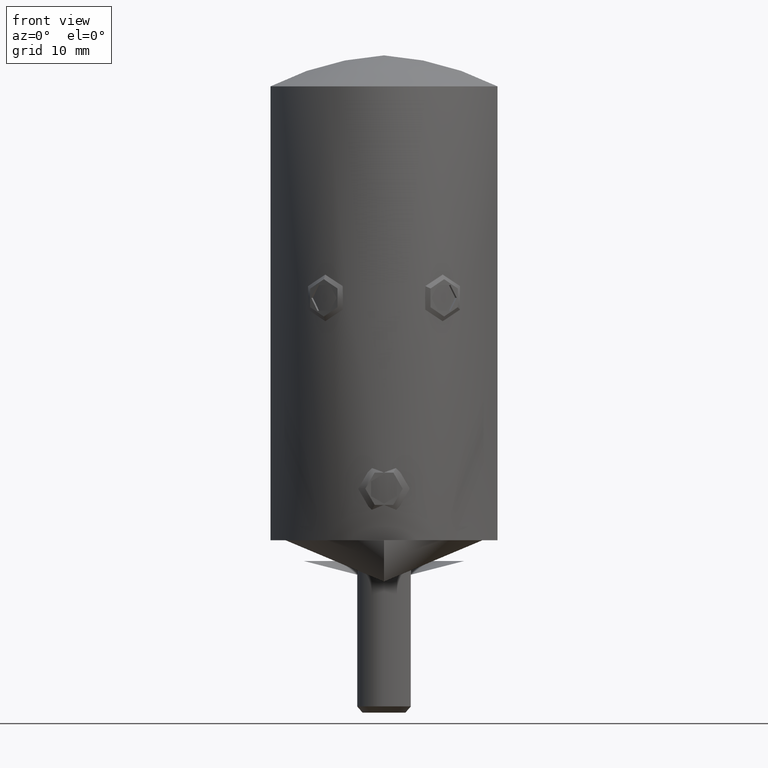
[diagram: clean part render]
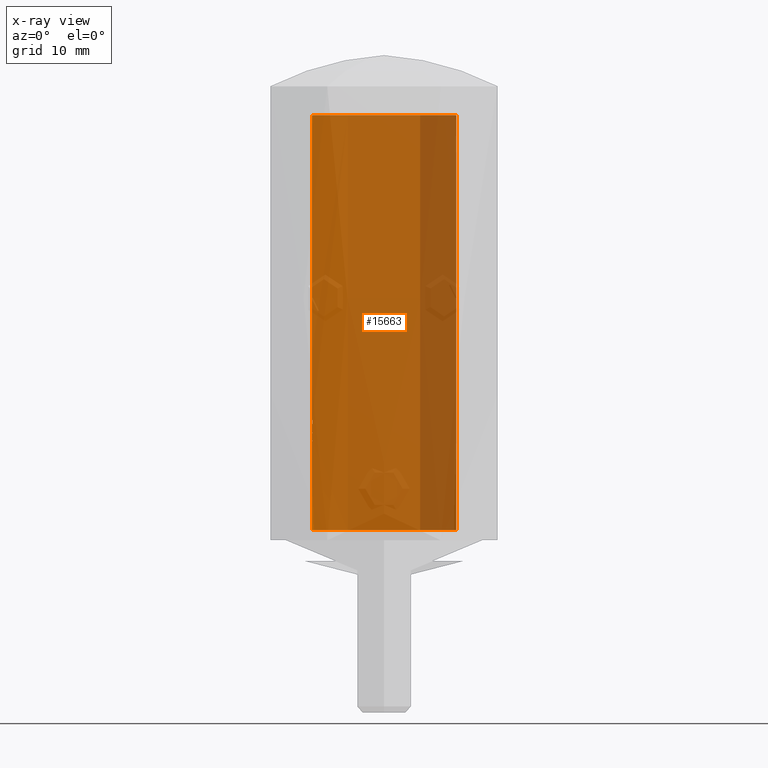
[diagram: x-ray — body ghosted, one internal face saturated and labeled with its STEP entity id]
A machine part, front view, then the same camera in x-ray: the body is ghosted and one INTERNAL B-rep face — a face not visible from any outside direction — is saturated and labeled: STEP entity #15663.
In plain terms, the highlighted cylindrical surface (partial cylindrical patch) has radius 7 mm, axis along (0, 0, 1).
Its self-contained STEP definition (entity closure, byte-faithful):
#29 = CARTESIAN_POINT ( 'NONE',  ( -6.975685441276669785, 0.5831352409177298357, 8.711320662982595664 ) ) ;
#53 = CARTESIAN_POINT ( 'NONE',  ( -6.975137246310729289, 0.5894582142183779627, 9.193748656184348889 ) ) ;
#83 = CARTESIAN_POINT ( 'NONE',  ( -6.993195266980171354, 0.3106620906838040153, 10.56491529341946567 ) ) ;
#121 = CARTESIAN_POINT ( 'NONE',  ( 6.984900380120135033, 0.5247418004113875156, 18.18558595372106623 ) ) ;
#139 = CARTESIAN_POINT ( 'NONE',  ( -6.999727933340092356, 0.06171950459328418709, 10.89935331033587218 ) ) ;
#180 = CARTESIAN_POINT ( 'NONE',  ( -4.293007506824409347, 5.531771002657396075, 25.82387946271992973 ) ) ;
#190 = CARTESIAN_POINT ( 'NONE',  ( 6.999999999999995559, 5.785308663664595328E-25, 35.39940828047583921 ) ) ;
#193 = EDGE_CURVE ( 'NONE', #8452, #22191, #10047, .T. ) ;
#256 = AXIS2_PLACEMENT_3D ( 'NONE', #6416, #1170, #22431 ) ;
#265 = CARTESIAN_POINT ( 'NONE',  ( 5.845936545844312882, 3.858095587234257717, 34.61900392706368024 ) ) ;
#275 = VERTEX_POINT ( 'NONE', #12245 ) ;
#331 = B_SPLINE_CURVE_WITH_KNOTS ( 'NONE', 3,
 ( #10957, #509, #14246, #21117, #10721, #19664, #12495, #10804, #2017, #2627 ),
 .UNSPECIFIED., .F., .F.,
 ( 4, 2, 2, 2, 4 ),
 ( 0.000000000000000000, 0.0001037594472690271067, 0.0002075188945380542133, 0.0003112783418070813471, 0.0004150377890761084267 ),
 .UNSPECIFIED. ) ;
#335 = CARTESIAN_POINT ( 'NONE',  ( -5.867910857699770943, 3.829016959065984160, 21.17366045008553144 ) ) ;
#351 = CARTESIAN_POINT ( 'NONE',  ( 3.483562852060016812, 6.071702105253862669, 31.16584623150087907 ) ) ;
#358 = CARTESIAN_POINT ( 'NONE',  ( -6.975191266297922965, 0.5888198242284299333, 6.743497213156795844 ) ) ;
#362 = DIRECTION ( 'NONE',  ( 1.000000000000000000, 0.000000000000000000, 0.000000000000000000 ) ) ;
#365 = CARTESIAN_POINT ( 'NONE',  ( -6.983852485567710211, 0.4759911326303138401, 10.15589237802039868 ) ) ;
#377 = VERTEX_POINT ( 'NONE', #10403 ) ;
#394 = CARTESIAN_POINT ( 'NONE',  ( -6.982978908578842514, 0.4894453731455002954, 9.002724178589890158 ) ) ;
#415 = CARTESIAN_POINT ( 'NONE',  ( -3.880748040951491173, 5.827348845917956766, 27.30982509923693513 ) ) ;
#427 = LINE ( 'NONE', #21714, #2041 ) ;
#502 = CARTESIAN_POINT ( 'NONE',  ( -6.983836538944188099, 0.4754231770833323711, 6.920717084389172769 ) ) ;
#509 = CARTESIAN_POINT ( 'NONE',  ( -6.975181206930625599, 0.5889387024385170921, 7.336785889655492277 ) ) ;
#538 = DIRECTION ( 'NONE',  ( 1.000000000000000000, 0.000000000000000000, 0.000000000000000000 ) ) ;
#578 = VERTEX_POINT ( 'NONE', #9699 ) ;
#618 = CARTESIAN_POINT ( 'NONE',  ( -6.998393933595229655, 0.1499411558493574381, 10.59435490490199072 ) ) ;
#662 = DIRECTION ( 'NONE',  ( 0.000000000000000000, 0.000000000000000000, -1.000000000000000000 ) ) ;
#671 = CARTESIAN_POINT ( 'NONE',  ( -6.975147358123694907, 0.5893387162230316889, 8.798367758529058946 ) ) ;
#688 = ORIENTED_EDGE ( 'NONE', *, *, #16508, .T. ) ;
#745 = CARTESIAN_POINT ( 'NONE',  ( -6.976491602072676379, 0.5732468379295093674, 8.862970908761345967 ) ) ;
#761 = CIRCLE ( 'NONE', #898, 6.999999999999992895 ) ;
#826 = CARTESIAN_POINT ( 'NONE',  ( -6.999999999999995559, 8.572527594031467273E-16, 35.39940828047583921 ) ) ;
#844 = CARTESIAN_POINT ( 'NONE',  ( -6.952498616693251421, 0.8141025641025626536, 9.607255545927635865 ) ) ;
#865 = EDGE_CURVE ( 'NONE', #1194, #20402, #21824, .T. ) ;
#884 = CARTESIAN_POINT ( 'NONE',  ( -6.975072415830049444, 0.5902243589743575436, 9.913180025094298742 ) ) ;
#898 = AXIS2_PLACEMENT_3D ( 'NONE', #19920, #4311, #5864 ) ;
#927 = EDGE_CURVE ( 'NONE', #13443, #8179, #761, .T. ) ;
#966 = CARTESIAN_POINT ( 'NONE',  ( -6.975072415830049444, 0.5902243589743577656, 9.173173514677637641 ) ) ;
#1036 = CARTESIAN_POINT ( 'NONE',  ( -6.975072415830049444, 0.5902243589743579877, 7.371653582786605874 ) ) ;
#1042 = VERTEX_POINT ( 'NONE', #19212 ) ;
#1143 = VERTEX_POINT ( 'NONE', #10441 ) ;
#1170 = DIRECTION ( 'NONE',  ( 0.000000000000000000, 0.000000000000000000, 1.000000000000000000 ) ) ;
#1194 = VERTEX_POINT ( 'NONE', #7294 ) ;
#1207 = CARTESIAN_POINT ( 'NONE',  ( -6.999961102973569993, 0.05654581292594183101, 8.335022741454485740 ) ) ;
#1210 = CIRCLE ( 'NONE', #15823, 6.999999999999995559 ) ;
#1220 = LINE ( 'NONE', #17158, #19178 ) ;
#1391 = VERTEX_POINT ( 'NONE', #21536 ) ;
#1451 = CARTESIAN_POINT ( 'NONE',  ( -6.979878195907902594, 0.5310964778666545927, 8.318291551647588378 ) ) ;
#1487 = CARTESIAN_POINT ( 'NONE',  ( -6.999999999999995559, 0.01016127060035066330, 10.73689740541943038 ) ) ;
#1531 = CARTESIAN_POINT ( 'NONE',  ( -6.999999999999995559, 8.572527594031467273E-16, 47.00000000000000000 ) ) ;
#1584 = CARTESIAN_POINT ( 'NONE',  ( -6.999999999999995559, 8.572527594031467273E-16, 47.00000000000000000 ) ) ;
#1607 = CARTESIAN_POINT ( 'NONE',  ( -6.984330604154168398, 0.4681089743589727514, 47.00000000000000000 ) ) ;
#1610 = CARTESIAN_POINT ( 'NONE',  ( 0.000000000000000000, 0.000000000000000000, 7.663585674132767700 ) ) ;
#1617 = CARTESIAN_POINT ( 'NONE',  ( -6.989828574833152786, 0.3785639965393163275, 8.580741675873527541 ) ) ;
#1631 = VERTEX_POINT ( 'NONE', #17934 ) ;
#1632 = CARTESIAN_POINT ( 'NONE',  ( -6.608797852428336839, 2.316393363424544827, 19.17797060263219677 ) ) ;
#1641 = DIRECTION ( 'NONE',  ( 0.000000000000000000, 0.000000000000000000, 1.000000000000000000 ) ) ;
#1658 = CARTESIAN_POINT ( 'NONE',  ( -6.999151191932070581, 0.1145966760719420580, 10.61428072925218125 ) ) ;
#1685 = LINE ( 'NONE', #1531, #15320 ) ;
#1689 = ORIENTED_EDGE ( 'NONE', *, *, #14307, .T. ) ;
#1701 = CARTESIAN_POINT ( 'NONE',  ( -6.179827551254266638, 3.302041814314965240, 20.32486935501282588 ) ) ;
#1710 = CARTESIAN_POINT ( 'NONE',  ( 6.925359298632935534, 1.026631398739719758, 18.34196799502888808 ) ) ;
#1741 = CARTESIAN_POINT ( 'NONE',  ( -6.981395117864716227, 0.5112392759052839519, 10.65549597568317353 ) ) ;
#1749 = LINE ( 'NONE', #5873, #3895 ) ;
#1755 = EDGE_CURVE ( 'NONE', #15327, #21196, #21763, .T. ) ;
#1763 = CARTESIAN_POINT ( 'NONE',  ( -6.999999999999998224, 6.757504127593325717E-12, 9.996084759406723919 ) ) ;
#1814 = CARTESIAN_POINT ( 'NONE',  ( -6.975072415830049444, 0.5902243589743577656, 8.132330666119941043 ) ) ;
#1834 = CARTESIAN_POINT ( 'NONE',  ( -6.996443253277772278, 0.2252596973262431801, 10.21307305300214452 ) ) ;
#1852 = VERTEX_POINT ( 'NONE', #17026 ) ;
#1871 = CIRCLE ( 'NONE', #8514, 6.999999999999995559 ) ;
#1878 = CARTESIAN_POINT ( 'NONE',  ( -6.999999999999992895, -6.285631654738170005E-14, 10.77627289863280247 ) ) ;
#1925 = CARTESIAN_POINT ( 'NONE',  ( 3.624318751276809358, 5.988803700344963232, 31.79586271317699797 ) ) ;
#1957 = CARTESIAN_POINT ( 'NONE',  ( -6.983793213084888762, 0.4760591947115369038, 10.62695080834750705 ) ) ;
#1967 = CARTESIAN_POINT ( 'NONE',  ( 0.000000000000000000, 0.000000000000000000, 10.43153439208147404 ) ) ;
#1999 = FACE_OUTER_BOUND ( 'NONE', #4748, .T. ) ;
#2001 = CARTESIAN_POINT ( 'NONE',  ( 6.101068396738040356, 3.440470909134230038, 34.80480834359970288 ) ) ;
#2017 = CARTESIAN_POINT ( 'NONE',  ( -6.992255263739549420, 0.3310283326966336759, 7.154873887702687618 ) ) ;
#2041 = VECTOR ( 'NONE', #662, 1000.000000000000000 ) ;
#2058 = CARTESIAN_POINT ( 'NONE',  ( -6.992945226585870699, 0.3141927083333320714, 8.579451058748150061 ) ) ;
#2071 = CARTESIAN_POINT ( 'NONE',  ( 4.971859574890522104, 4.932639416082039929, 33.88973780614934128 ) ) ;
#2114 = EDGE_CURVE ( 'NONE', #16441, #20646, #9173, .T. ) ;
#2140 = AXIS2_PLACEMENT_3D ( 'NONE', #6308, #18486, #2568 ) ;
#2141 = CARTESIAN_POINT ( 'NONE',  ( -4.092214578090410448, 5.681886404717769068, 32.84057254369331247 ) ) ;
#2209 = CARTESIAN_POINT ( 'NONE',  ( -3.556265491926552169, 6.029749682938665423, 28.83210282961966087 ) ) ;
#2212 = VERTEX_POINT ( 'NONE', #11884 ) ;
#2229 = CARTESIAN_POINT ( 'NONE',  ( -6.981540128545548285, 0.5091568182339811788, 6.893679012488872715 ) ) ;
#2235 = DIRECTION ( 'NONE',  ( 0.000000000000000000, 0.000000000000000000, 1.000000000000000000 ) ) ;
#2287 = AXIS2_PLACEMENT_3D ( 'NONE', #15821, #8861, #10634 ) ;
#2298 = AXIS2_PLACEMENT_3D ( 'NONE', #1610, #4798, #6852 ) ;
#2313 = CARTESIAN_POINT ( 'NONE',  ( -6.975072415830049444, 0.5902243589743576546, 8.775821501456480433 ) ) ;
#2326 = ORIENTED_EDGE ( 'NONE', *, *, #4408, .T. ) ;
#2350 = DIRECTION ( 'NONE',  ( 1.000000000000000000, 0.000000000000000000, 0.000000000000000000 ) ) ;
#2367 = B_SPLINE_CURVE_WITH_KNOTS ( 'NONE', 3,
 ( #12526, #21218, #8824, #10835, #394, #20997 ),
 .UNSPECIFIED., .F., .F.,
 ( 4, 2, 4 ),
 ( 7.040638946443416885E-18, 0.0001240503331287761443, 0.0002481006662575452413 ),
 .UNSPECIFIED. ) ;
#2425 = LINE ( 'NONE', #13096, #8133 ) ;
#2482 = ORIENTED_EDGE ( 'NONE', *, *, #927, .T. ) ;
#2493 = CARTESIAN_POINT ( 'NONE',  ( -6.999999999999995559, 8.572527594031467273E-16, 47.00000000000000000 ) ) ;
#2522 = CARTESIAN_POINT ( 'NONE',  ( -6.980876353886601215, 0.5171208461490290897, 9.343517660451603035 ) ) ;
#2568 = DIRECTION ( 'NONE',  ( 1.000000000000000000, 0.000000000000000000, 0.000000000000000000 ) ) ;
#2605 = CARTESIAN_POINT ( 'NONE',  ( -6.981410257884983928, 0.5098704640730179483, 9.349888911025095339 ) ) ;
#2627 = CARTESIAN_POINT ( 'NONE',  ( -6.993729378862254542, 0.2962252103365373701, 7.154771571568661059 ) ) ;
#2633 = CARTESIAN_POINT ( 'NONE',  ( -6.978300797048324178, 0.5509750586898720659, 6.568586823805176778 ) ) ;
#2668 = VERTEX_POINT ( 'NONE', #966 ) ;
#2712 = VERTEX_POINT ( 'NONE', #20032 ) ;
#2775 = CARTESIAN_POINT ( 'NONE',  ( -6.975926048092667919, 0.5800480769230758060, 7.826406186953270172 ) ) ;
#2877 = VERTEX_POINT ( 'NONE', #6648 ) ;
#2895 = VERTEX_POINT ( 'NONE', #22371 ) ;
#2963 = ORIENTED_EDGE ( 'NONE', *, *, #11392, .T. ) ;
#2989 = AXIS2_PLACEMENT_3D ( 'NONE', #3096, #19018, #4918 ) ;
#3014 = B_SPLINE_CURVE_WITH_KNOTS ( 'NONE', 3,
 ( #15685, #8486, #15385, #15457, #17351, #6902 ),
 .UNSPECIFIED., .F., .F.,
 ( 4, 2, 4 ),
 ( 0.000000000000000000, 0.0001305349250431107628, 0.0002610698500862215256 ),
 .UNSPECIFIED. ) ;
#3073 = VECTOR ( 'NONE', #8507, 1000.000000000000000 ) ;
#3096 = CARTESIAN_POINT ( 'NONE',  ( 0.000000000000000000, 0.000000000000000000, 11.25581323823532642 ) ) ;
#3101 = CARTESIAN_POINT ( 'NONE',  ( -6.975677100225959215, 0.5832201906683317505, 8.212073160864507670 ) ) ;
#3222 = CARTESIAN_POINT ( 'NONE',  ( -6.976773795614335860, 0.5697734561777609841, 9.273985374793017655 ) ) ;
#3237 = CARTESIAN_POINT ( 'NONE',  ( -6.999733706235544695, 0.06105769230769075850, 10.87118157757827319 ) ) ;
#3329 = EDGE_CURVE ( 'NONE', #7746, #13967, #4777, .T. ) ;
#3343 = CARTESIAN_POINT ( 'NONE',  ( -6.983998366705323591, 0.4738696323051874160, 8.597987151017539631 ) ) ;
#3349 = CIRCLE ( 'NONE', #4500, 6.999999999999995559 ) ;
#3370 = DIRECTION ( 'NONE',  ( -0.000000000000000000, -0.000000000000000000, 1.000000000000000000 ) ) ;
#3412 = DIRECTION ( 'NONE',  ( 1.000000000000000000, 0.000000000000000000, 0.000000000000000000 ) ) ;
#3417 = B_SPLINE_CURVE_WITH_KNOTS ( 'NONE', 3,
 ( #4595, #11657, #1207, #20513, #20430, #6382, #18853, #11734 ),
 .UNSPECIFIED., .F., .F.,
 ( 4, 2, 2, 4 ),
 ( 8.124888564062292349E-05, 0.0002770453866935328408, 0.0003749436372199893715, 0.0004728418877464459023 ),
 .UNSPECIFIED. ) ;
#3433 = CARTESIAN_POINT ( 'NONE',  ( -6.970712478516841948, 0.6520533186806239945, 18.22284438351175950 ) ) ;
#3442 = DIRECTION ( 'NONE',  ( 1.000000000000000000, 0.000000000000000000, 0.000000000000000000 ) ) ;
#3463 = B_SPLINE_CURVE_WITH_KNOTS ( 'NONE', 3,
 ( #1763, #7017, #10601, #13996, #12376, #1834, #12457, #3485 ),
 .UNSPECIFIED., .F., .F.,
 ( 4, 2, 2, 4 ),
 ( 8.124888564028219940E-05, 0.0002770453866933673915, 0.0003749436372199116884, 0.0004728418877464559311 ),
 .UNSPECIFIED. ) ;
#3476 = EDGE_CURVE ( 'NONE', #13967, #578, #15431, .T. ) ;
#3485 = CARTESIAN_POINT ( 'NONE',  ( -6.993923164209693510, 0.2916140825320498453, 10.21783246900455744 ) ) ;
#3503 = CARTESIAN_POINT ( 'NONE',  ( -6.977499106223290504, 0.5608085436698706516, 9.292744828780199029 ) ) ;
#3519 = CARTESIAN_POINT ( 'NONE',  ( -6.952498616693251421, 0.8141025641025626536, 9.678489520286607473 ) ) ;
#3526 = VECTOR ( 'NONE', #12329, 1000.000000000000000 ) ;
#3542 = VERTEX_POINT ( 'NONE', #21179 ) ;
#3597 = CARTESIAN_POINT ( 'NONE',  ( -6.975926048092667919, 0.5800480769230756950, 9.373201058748145797 ) ) ;
#3610 = EDGE_CURVE ( 'NONE', #8734, #21203, #8626, .T. ) ;
#3617 = CARTESIAN_POINT ( 'NONE',  ( -6.999726386330050509, 0.06189685584760121206, 10.82791465569631839 ) ) ;
#3637 = AXIS2_PLACEMENT_3D ( 'NONE', #14061, #15635, #3412 ) ;
#3641 = CARTESIAN_POINT ( 'NONE',  ( -6.983575710892730548, 0.4792392828525628423, 9.373201058748145797 ) ) ;
#3661 = CARTESIAN_POINT ( 'NONE',  ( 0.000000000000000000, 0.000000000000000000, 10.36030041772250243 ) ) ;
#3663 = CARTESIAN_POINT ( 'NONE',  ( -6.975677100225962768, 0.5832201906683379677, 9.992922519838861817 ) ) ;
#3723 = CARTESIAN_POINT ( 'NONE',  ( 4.441602385855962787, 5.414197472320702254, 25.33921187414433973 ) ) ;
#3725 = CARTESIAN_POINT ( 'NONE',  ( -6.979136293074545527, 0.5404259276506253595, 7.534426597955051541 ) ) ;
#3736 = ORIENTED_EDGE ( 'NONE', *, *, #2114, .T. ) ;
#3761 = CARTESIAN_POINT ( 'NONE',  ( 0.000000000000000000, 0.000000000000000000, 11.25581323823532642 ) ) ;
#3781 = EDGE_CURVE ( 'NONE', #21464, #8452, #17416, .T. ) ;
#3786 = CARTESIAN_POINT ( 'NONE',  ( -6.981952425540621121, 0.5023348758421917193, 9.355886791321498919 ) ) ;
#3794 = CARTESIAN_POINT ( 'NONE',  ( 6.999999999999999112, 0.5218589199780141463, 35.39940828047583921 ) ) ;
#3847 = VECTOR ( 'NONE', #20617, 1000.000000000000000 ) ;
#3854 = VERTEX_POINT ( 'NONE', #9633 ) ;
#3871 = CARTESIAN_POINT ( 'NONE',  ( 6.542392824673783913, 2.496127653088373588, 19.35442427480737138 ) ) ;
#3895 = VECTOR ( 'NONE', #11385, 1000.000000000000000 ) ;
#3943 = CARTESIAN_POINT ( 'NONE',  ( -6.220883628476962635, 3.219242264040782064, 34.88860470915785328 ) ) ;
#3968 = AXIS2_PLACEMENT_3D ( 'NONE', #12978, #21675, #6476 ) ;
#4005 = DIRECTION ( 'NONE',  ( 0.000000000000000000, 0.000000000000000000, 1.000000000000000000 ) ) ;
#4035 = CARTESIAN_POINT ( 'NONE',  ( -6.975191266297922965, 0.5888198242284299333, 7.415131828541412062 ) ) ;
#4039 = EDGE_CURVE ( 'NONE', #11676, #1042, #11353, .T. ) ;
#4132 = VECTOR ( 'NONE', #15577, 1000.000000000000000 ) ;
#4137 = LINE ( 'NONE', #15981, #16985 ) ;
#4311 = DIRECTION ( 'NONE',  ( -0.000000000000000000, -0.000000000000000000, 1.000000000000000000 ) ) ;
#4359 = ORIENTED_EDGE ( 'NONE', *, *, #12318, .T. ) ;
#4366 = CARTESIAN_POINT ( 'NONE',  ( -6.993729378862254542, 0.2962252103365374811, 6.483136956184038624 ) ) ;
#4399 = LINE ( 'NONE', #12088, #4132 ) ;
#4408 = EDGE_CURVE ( 'NONE', #3542, #1143, #10007, .T. ) ;
#4452 = ORIENTED_EDGE ( 'NONE', *, *, #17677, .T. ) ;
#4500 = AXIS2_PLACEMENT_3D ( 'NONE', #19571, #9301, #21240 ) ;
#4595 = CARTESIAN_POINT ( 'NONE',  ( -6.999999999999995559, 6.843987144420054635E-12, 8.215235400432696622 ) ) ;
#4599 = AXIS2_PLACEMENT_3D ( 'NONE', #19347, #8764, #19276 ) ;
#4626 = VERTEX_POINT ( 'NONE', #12736 ) ;
#4654 = DIRECTION ( 'NONE',  ( 1.000000000000000000, 0.000000000000000000, 0.000000000000000000 ) ) ;
#4674 = VERTEX_POINT ( 'NONE', #826 ) ;
#4748 = EDGE_LOOP ( 'NONE', ( #10368, #15915, #10928, #12688, #4359, #2482, #12438, #17589, #17330, #9070, #17452, #17280, #20983, #15766, #10371, #19113, #18804, #17768, #5502, #6565, #4893, #5933, #11409, #4452, #6106, #16419, #13107, #6356, #22322, #16455, #4762, #16618, #1689, #13205, #4882, #688, #11173, #22077, #10413, #17160, #10155, #7919, #12831, #7942, #17853, #20194, #9184, #6586, #15156, #6823, #5213, #21560, #2326, #7620, #5165, #3736, #16381, #5642, #21473, #21000, #13097, #4758, #18070, #2963, #14515, #9328, #6896, #13662, #10420, #10164, #10128 ) ) ;
#4758 = ORIENTED_EDGE ( 'NONE', *, *, #3610, .T. ) ;
#4762 = ORIENTED_EDGE ( 'NONE', *, *, #6452, .T. ) ;
#4763 = B_SPLINE_CURVE_WITH_KNOTS ( 'NONE', 3,
 ( #19301, #12497, #9098, #21193, #365, #8943, #17795, #3663, #5448, #19381 ),
 .UNSPECIFIED., .F., .F.,
 ( 4, 2, 2, 2, 4 ),
 ( 0.000000000000000000, 0.0001179767162651381671, 0.0002359534325302763342, 0.0003539301487954144877, 0.0004719068650605526684 ),
 .UNSPECIFIED. ) ;
#4777 = LINE ( 'NONE', #5578, #10794 ) ;
#4798 = DIRECTION ( 'NONE',  ( 0.000000000000000000, 0.000000000000000000, -1.000000000000000000 ) ) ;
#4831 = DIRECTION ( 'NONE',  ( 0.000000000000000000, 0.000000000000000000, -1.000000000000000000 ) ) ;
#4853 = CARTESIAN_POINT ( 'NONE',  ( -6.975168945471281745, 0.5890836042297978858, 8.172165273363226845 ) ) ;
#4882 = ORIENTED_EDGE ( 'NONE', *, *, #11549, .T. ) ;
#4893 = ORIENTED_EDGE ( 'NONE', *, *, #8564, .T. ) ;
#4918 = DIRECTION ( 'NONE',  ( 1.000000000000000000, 0.000000000000000000, 0.000000000000000000 ) ) ;
#4969 = B_SPLINE_CURVE_WITH_KNOTS ( 'NONE', 3,
 ( #5157, #10357, #22500, #12206, #83, #12276 ),
 .UNSPECIFIED., .F., .F.,
 ( 4, 2, 4 ),
 ( 5.421010862427522170E-20, 0.0001077436105361412983, 0.0002154872210722825424 ),
 .UNSPECIFIED. ) ;
#5028 = CARTESIAN_POINT ( 'NONE',  ( -6.999999999999995559, 8.572527594031467273E-16, 47.00000000000000000 ) ) ;
#5052 = CARTESIAN_POINT ( 'NONE',  ( 6.863605725836154470, 1.379838403371776323, 18.50442457768950177 ) ) ;
#5068 = EDGE_CURVE ( 'NONE', #1391, #20455, #5284, .T. ) ;
#5103 = CARTESIAN_POINT ( 'NONE',  ( 6.999999999999992895, 0.000000000000000000, 41.20360331117451125 ) ) ;
#5157 = CARTESIAN_POINT ( 'NONE',  ( -6.983793213084888762, 0.4760591947115369038, 10.62695080834750705 ) ) ;
#5165 = ORIENTED_EDGE ( 'NONE', *, *, #18742, .T. ) ;
#5205 = CARTESIAN_POINT ( 'NONE',  ( -6.976151579454841212, 0.5773418291420120418, 9.254613284230508441 ) ) ;
#5213 = ORIENTED_EDGE ( 'NONE', *, *, #9461, .F. ) ;
#5228 = CARTESIAN_POINT ( 'NONE',  ( -6.999987181472779874, 0.02936360170756342411, 10.69995803342106555 ) ) ;
#5247 = EDGE_CURVE ( 'NONE', #8431, #20090, #7629, .T. ) ;
#5252 = VERTEX_POINT ( 'NONE', #14627 ) ;
#5284 = LINE ( 'NONE', #1584, #11042 ) ;
#5313 = CARTESIAN_POINT ( 'NONE',  ( -6.975171153017883263, 0.5890575161885387434, 10.81533190112568477 ) ) ;
#5362 = CARTESIAN_POINT ( 'NONE',  ( 4.901896686587483565, 5.013668613632527027, 23.89935912472220281 ) ) ;
#5372 = CIRCLE ( 'NONE', #16471, 6.999999999999995559 ) ;
#5448 = CARTESIAN_POINT ( 'NONE',  ( -6.975168945471279969, 0.5890836042297982189, 9.953014632337584544 ) ) ;
#5500 = CARTESIAN_POINT ( 'NONE',  ( -6.983041713432490916, 0.4870208062510928415, 9.367541357242533451 ) ) ;
#5502 = ORIENTED_EDGE ( 'NONE', *, *, #15387, .F. ) ;
#5512 = CARTESIAN_POINT ( 'NONE',  ( 5.228925469444659413, 4.683467445060103707, 22.95532985235865553 ) ) ;
#5529 = LINE ( 'NONE', #20400, #17257 ) ;
#5541 = CARTESIAN_POINT ( 'NONE',  ( -6.981563341795685496, 0.5090154116276452978, 7.925668110833719027 ) ) ;
#5567 = CARTESIAN_POINT ( 'NONE',  ( 0.000000000000000000, 0.000000000000000000, 11.64251195618404644 ) ) ;
#5573 = CARTESIAN_POINT ( 'NONE',  ( -4.820113314589685949, 5.080106331096887473, 33.74222099732805447 ) ) ;
#5578 = CARTESIAN_POINT ( 'NONE',  ( -6.975926048092667031, 0.5800480769230760281, 47.00000000000000000 ) ) ;
#5642 = ORIENTED_EDGE ( 'NONE', *, *, #5068, .F. ) ;
#5645 = CARTESIAN_POINT ( 'NONE',  ( -4.441893331862082128, 5.413941733781940435, 25.33830628421084441 ) ) ;
#5648 = VECTOR ( 'NONE', #3370, 1000.000000000000000 ) ;
#5654 = CARTESIAN_POINT ( 'NONE',  ( 4.817025510531595778, 5.083044985463340382, 33.73913089254202902 ) ) ;
#5684 = CARTESIAN_POINT ( 'NONE',  ( -6.999999999999995559, -1.180513887576324874E-15, 7.826406186953270172 ) ) ;
#5722 = CARTESIAN_POINT ( 'NONE',  ( -6.985203488364877700, 0.5243822651877466656, 35.39021587486207210 ) ) ;
#5735 = CARTESIAN_POINT ( 'NONE',  ( -6.975919415416912628, 0.5804755724375524339, 7.458433197829239525 ) ) ;
#5754 = VERTEX_POINT ( 'NONE', #12392 ) ;
#5805 = CARTESIAN_POINT ( 'NONE',  ( -6.954851611465190153, 0.7937499999999982903, 11.64251195618404644 ) ) ;
#5834 = VECTOR ( 'NONE', #13755, 1000.000000000000000 ) ;
#5864 = DIRECTION ( 'NONE',  ( 1.000000000000000000, 0.000000000000000000, 0.000000000000000000 ) ) ;
#5873 = CARTESIAN_POINT ( 'NONE',  ( -6.999999999999995559, 8.572527594031467273E-16, 47.00000000000000000 ) ) ;
#5889 = CARTESIAN_POINT ( 'NONE',  ( -6.981911184932688030, 0.5042322159321883657, 9.706850409577890915 ) ) ;
#5899 = VECTOR ( 'NONE', #10902, 1000.000000000000000 ) ;
#5911 = CARTESIAN_POINT ( 'NONE',  ( -6.982983413948093521, 0.4893754566616161927, 8.966811679149973457 ) ) ;
#5933 = ORIENTED_EDGE ( 'NONE', *, *, #16214, .T. ) ;
#5952 = EDGE_CURVE ( 'NONE', #21196, #275, #3349, .T. ) ;
#5964 = CARTESIAN_POINT ( 'NONE',  ( -6.993729378862254542, 0.2962252103365374811, 6.483136956184038624 ) ) ;
#5967 = VERTEX_POINT ( 'NONE', #21394 ) ;
#5971 = EDGE_CURVE ( 'NONE', #19529, #9387, #18372, .T. ) ;
#6012 = CARTESIAN_POINT ( 'NONE',  ( 6.999999999999995559, 5.785308663664595328E-25, 35.39940828047583921 ) ) ;
#6086 = DIRECTION ( 'NONE',  ( 0.000000000000000000, 0.000000000000000000, -1.000000000000000000 ) ) ;
#6106 = ORIENTED_EDGE ( 'NONE', *, *, #5971, .T. ) ;
#6212 = CARTESIAN_POINT ( 'NONE',  ( -6.984351910703994193, 0.4677909655448703741, 9.678489520286607473 ) ) ;
#6252 = CARTESIAN_POINT ( 'NONE',  ( -6.999777645199418252, 0.05883047230146059431, 11.05835250676353709 ) ) ;
#6288 = DIRECTION ( 'NONE',  ( 0.000000000000000000, 0.000000000000000000, 1.000000000000000000 ) ) ;
#6295 = B_SPLINE_CURVE_WITH_KNOTS ( 'NONE', 3,
 ( #20799, #14079, #12014, #15505, #3433, #17331, #6798, #20723, #15659, #1632, #10396, #22535, #1701, #335, #16023, #17847, #12472, #5645, #180, #7170, #415, #7469, #2209, #10856, #16182, #8991, #9067, #21238, #12618, #19641, #2141, #19351, #16104, #5573, #14437, #17766, #14368, #9222, #12390, #7319, #3943, #9149, #8920, #19431, #7249, #5722, #19569, #21166 ),
 .UNSPECIFIED., .F., .F.,
 ( 4, 2, 2, 2, 2, 2, 2, 2, 2, 2, 2, 2, 2, 2, 2, 2, 2, 2, 2, 2, 2, 2, 2, 4 ),
 ( 0.02501198260958564443, 0.02540389757927323522, 0.02579581254896082254, 0.02657964248833600066, 0.02736347242771117530, 0.02814730236708635341, 0.02971496224583669576, 0.03128262212458703811, 0.03441794188208773669, 0.03598560176083808598, 0.03755326163958844221, 0.03912092151833879150, 0.04068858139708914079, 0.04147241133646432931, 0.04225624127583950396, 0.04304007121521469248, 0.04382390115458986712, 0.04460773109396504871, 0.04539156103334023029, 0.04617539097271541881, 0.04695922091209059346, 0.04852688079084095663, 0.04931071073021614515, 0.05009454066959132673 ),
 .UNSPECIFIED. ) ;
#6308 = CARTESIAN_POINT ( 'NONE',  ( 0.000000000000000000, 0.000000000000000000, 9.373201058748145797 ) ) ;
#6353 = CARTESIAN_POINT ( 'NONE',  ( -6.999999999999995559, 8.572527594031467273E-16, 47.00000000000000000 ) ) ;
#6356 = ORIENTED_EDGE ( 'NONE', *, *, #865, .T. ) ;
#6382 = CARTESIAN_POINT ( 'NONE',  ( -6.996443253277774943, 0.2252596973262906421, 8.432223694027808136 ) ) ;
#6404 = B_SPLINE_CURVE_WITH_KNOTS ( 'NONE', 3,
 ( #6941, #8673, #29, #12224, #20708, #3343, #22447, #1617, #13841, #16223 ),
 .UNSPECIFIED., .F., .F.,
 ( 4, 2, 2, 2, 4 ),
 ( 0.000000000000000000, 9.575658788309097220E-05, 0.0001915131757661819444, 0.0002872697636492729301, 0.0003830263515323638888 ),
 .UNSPECIFIED. ) ;
#6407 = CARTESIAN_POINT ( 'NONE',  ( -6.990270887320200188, 0.3707298341137624798, 8.429776795918037635 ) ) ;
#6416 = CARTESIAN_POINT ( 'NONE',  ( 0.000000000000000000, 0.000000000000000000, 7.826406186953270172 ) ) ;
#6438 = CARTESIAN_POINT ( 'NONE',  ( 0.000000000000000000, 0.000000000000000000, 7.592351699773780993 ) ) ;
#6443 = CARTESIAN_POINT ( 'NONE',  ( -6.999999999999995559, -1.427902367915494180E-15, 9.607255545927635865 ) ) ;
#6451 = CARTESIAN_POINT ( 'NONE',  ( -6.990523480903461540, 0.3657506385901143631, 6.484430950699304752 ) ) ;
#6452 = EDGE_CURVE ( 'NONE', #4626, #1631, #16174, .T. ) ;
#6456 = CARTESIAN_POINT ( 'NONE',  ( 0.000000000000000000, 0.000000000000000000, 9.678489520286607473 ) ) ;
#6476 = DIRECTION ( 'NONE',  ( -1.000000000000000000, 0.000000000000000000, 0.000000000000000000 ) ) ;
#6537 = B_SPLINE_CURVE_WITH_KNOTS ( 'NONE', 3,
 ( #15783, #3617, #17522, #15930, #17668, #20849 ),
 .UNSPECIFIED., .F., .F.,
 ( 4, 2, 4 ),
 ( 0.000000000000000000, 0.0001283067629405691885, 0.0002566135258811383770 ),
 .UNSPECIFIED. ) ;
#6541 = CARTESIAN_POINT ( 'NONE',  ( -6.963660825291711376, 0.7123397435897419472, 11.57127798182506773 ) ) ;
#6565 = ORIENTED_EDGE ( 'NONE', *, *, #15939, .T. ) ;
#6567 = VERTEX_POINT ( 'NONE', #6012 ) ;
#6582 = CARTESIAN_POINT ( 'NONE',  ( -6.999999999999995559, -1.459002634015275544E-15, 10.36030041772250243 ) ) ;
#6586 = ORIENTED_EDGE ( 'NONE', *, *, #5247, .T. ) ;
#6629 = LINE ( 'NONE', #1607, #3073 ) ;
#6648 = CARTESIAN_POINT ( 'NONE',  ( -6.977499106223290504, 0.5608085436698706516, 9.292744828780199029 ) ) ;
#6686 = B_SPLINE_CURVE_WITH_KNOTS ( 'NONE', 3,
 ( #8882, #5313, #10655, #12433, #1741, #1957 ),
 .UNSPECIFIED., .F., .F.,
 ( 4, 2, 4 ),
 ( 0.000000000000000000, 0.0001352648156522859042, 0.0002705296313045718083 ),
 .UNSPECIFIED. ) ;
#6687 = VECTOR ( 'NONE', #6714, 1000.000000000000000 ) ;
#6705 = DIRECTION ( 'NONE',  ( -0.000000000000000000, -0.000000000000000000, 1.000000000000000000 ) ) ;
#6714 = DIRECTION ( 'NONE',  ( -0.000000000000000000, -0.000000000000000000, 1.000000000000000000 ) ) ;
#6765 = CIRCLE ( 'NONE', #14277, 6.999999999999995559 ) ;
#6773 = EDGE_CURVE ( 'NONE', #22191, #16022, #5529, .T. ) ;
#6798 = CARTESIAN_POINT ( 'NONE',  ( -6.887608777537050919, 1.270274337741952086, 18.44116813934238763 ) ) ;
#6806 = CARTESIAN_POINT ( 'NONE',  ( -6.977139173185732623, 0.5652867786686203155, 9.283373353023071317 ) ) ;
#6810 = CIRCLE ( 'NONE', #20812, 6.999999999999995559 ) ;
#6823 = ORIENTED_EDGE ( 'NONE', *, *, #12751, .T. ) ;
#6852 = DIRECTION ( 'NONE',  ( -1.000000000000000000, 0.000000000000000000, 0.000000000000000000 ) ) ;
#6865 = EDGE_CURVE ( 'NONE', #1391, #8384, #21863, .T. ) ;
#6896 = ORIENTED_EDGE ( 'NONE', *, *, #3329, .T. ) ;
#6902 = CARTESIAN_POINT ( 'NONE',  ( -6.975072415830049444, 0.5902243589743574326, 10.86052828230583600 ) ) ;
#6925 = LINE ( 'NONE', #10219, #5834 ) ;
#6941 = CARTESIAN_POINT ( 'NONE',  ( -6.975072415830049444, 0.5902243589743576546, 8.775821501456480433 ) ) ;
#7017 = CARTESIAN_POINT ( 'NONE',  ( -6.999999999999977796, 0.01659546550290000311, 10.05947544364592972 ) ) ;
#7038 = CARTESIAN_POINT ( 'NONE',  ( 6.999999999999995559, -8.285570601285806503E-47, 18.14600281952404615 ) ) ;
#7063 = AXIS2_PLACEMENT_3D ( 'NONE', #3761, #4005, #538 ) ;
#7106 = CARTESIAN_POINT ( 'NONE',  ( 3.663189119944947780, 5.965210798652964996, 31.92095520107509543 ) ) ;
#7170 = CARTESIAN_POINT ( 'NONE',  ( -4.012265969432349699, 5.738651903542073995, 26.81056856561919943 ) ) ;
#7176 = DIRECTION ( 'NONE',  ( 0.000000000000000000, 0.000000000000000000, -1.000000000000000000 ) ) ;
#7179 = CARTESIAN_POINT ( 'NONE',  ( 3.435345811521329118, 6.099454754854335192, 29.86303054383800415 ) ) ;
#7188 = CARTESIAN_POINT ( 'NONE',  ( -6.975919415416903746, 0.5804755724375536552, 6.786798582444624195 ) ) ;
#7221 = EDGE_CURVE ( 'NONE', #8130, #16274, #18062, .T. ) ;
#7235 = CARTESIAN_POINT ( 'NONE',  ( -6.999999999999995559, -1.631467746023153851E-15, 11.64251195618404644 ) ) ;
#7249 = CARTESIAN_POINT ( 'NONE',  ( -6.926802405895977621, 1.042810128250600599, 35.35364858841585800 ) ) ;
#7259 = CARTESIAN_POINT ( 'NONE',  ( 4.514843048429426631, 5.353248858534849219, 33.41015681067842280 ) ) ;
#7294 = CARTESIAN_POINT ( 'NONE',  ( -6.997602991302842135, 0.1831730769230753841, 10.65763865890840023 ) ) ;
#7319 = CARTESIAN_POINT ( 'NONE',  ( -6.101490315105780660, 3.439674890988913436, 34.80510070438866421 ) ) ;
#7327 = CARTESIAN_POINT ( 'NONE',  ( 5.868898919732982833, 3.827452462793921040, 21.17095840076654056 ) ) ;
#7469 = CARTESIAN_POINT ( 'NONE',  ( -3.653335159690302092, 5.972549048801592875, 28.31917244420478497 ) ) ;
#7530 = CARTESIAN_POINT ( 'NONE',  ( -6.998156588207514517, 0.1610190784660975594, 10.61545066184678276 ) ) ;
#7576 = CIRCLE ( 'NONE', #2989, 6.999999999999995559 ) ;
#7578 = CARTESIAN_POINT ( 'NONE',  ( -6.975072415830049444, 0.5902243589743576546, 8.775821501456480433 ) ) ;
#7620 = ORIENTED_EDGE ( 'NONE', *, *, #17699, .T. ) ;
#7629 = B_SPLINE_CURVE_WITH_KNOTS ( 'NONE', 3,
 ( #13020, #5911, #21569, #11116, #745, #9649, #671, #7578 ),
 .UNSPECIFIED., .F., .F.,
 ( 4, 2, 2, 4 ),
 ( 0.000000000000000000, 0.0001335179647753662480, 0.0002002769471630493721, 0.0002670359295507324961 ),
 .UNSPECIFIED. ) ;
#7676 = EDGE_CURVE ( 'NONE', #5252, #275, #4137, .T. ) ;
#7679 = CARTESIAN_POINT ( 'NONE',  ( -6.994055034876375920, 0.2884339943910240733, 11.15405041772250527 ) ) ;
#7746 = VERTEX_POINT ( 'NONE', #8716 ) ;
#7913 = VERTEX_POINT ( 'NONE', #17561 ) ;
#7919 = ORIENTED_EDGE ( 'NONE', *, *, #16289, .T. ) ;
#7942 = ORIENTED_EDGE ( 'NONE', *, *, #20448, .T. ) ;
#7960 = LINE ( 'NONE', #8206, #3847 ) ;
#7964 = CARTESIAN_POINT ( 'NONE',  ( -6.998140889070009862, 0.1641044427394376393, 11.13028904072055880 ) ) ;
#8019 = EDGE_CURVE ( 'NONE', #11443, #7746, #10151, .T. ) ;
#8093 = CARTESIAN_POINT ( 'NONE',  ( -6.994055034876375920, 0.2884339943910240733, 11.15405041772250527 ) ) ;
#8118 = CARTESIAN_POINT ( 'NONE',  ( -6.978068893818806018, 0.5538693984491569466, 8.284708600859870486 ) ) ;
#8130 = VERTEX_POINT ( 'NONE', #22485 ) ;
#8131 = EDGE_CURVE ( 'NONE', #20402, #10150, #19043, .T. ) ;
#8133 = VECTOR ( 'NONE', #8164, 1000.000000000000000 ) ;
#8153 = VECTOR ( 'NONE', #12039, 1000.000000000000000 ) ;
#8164 = DIRECTION ( 'NONE',  ( 0.000000000000000000, 0.000000000000000000, -1.000000000000000000 ) ) ;
#8179 = VERTEX_POINT ( 'NONE', #21515 ) ;
#8206 = CARTESIAN_POINT ( 'NONE',  ( -6.952498616693251421, 0.8141025641025626536, 47.00000000000000000 ) ) ;
#8384 = VERTEX_POINT ( 'NONE', #13103 ) ;
#8431 = VERTEX_POINT ( 'NONE', #9580 ) ;
#8452 = VERTEX_POINT ( 'NONE', #13337 ) ;
#8486 = CARTESIAN_POINT ( 'NONE',  ( -6.981072906103180209, 0.5155016754099176479, 11.05930241582852425 ) ) ;
#8489 = CARTESIAN_POINT ( 'NONE',  ( -6.998563910360752871, 0.1432152236574958104, 11.04221978392373416 ) ) ;
#8507 = DIRECTION ( 'NONE',  ( 0.000000000000000000, 0.000000000000000000, -1.000000000000000000 ) ) ;
#8514 = AXIS2_PLACEMENT_3D ( 'NONE', #20956, #1641, #3442 ) ;
#8564 = EDGE_CURVE ( 'NONE', #12914, #18576, #22518, .T. ) ;
#8621 = EDGE_CURVE ( 'NONE', #22361, #3542, #3417, .T. ) ;
#8626 = B_SPLINE_CURVE_WITH_KNOTS ( 'NONE', 3,
 ( #9159, #9080, #3725, #5735, #4035, #10787 ),
 .UNSPECIFIED., .F., .F.,
 ( 4, 2, 4 ),
 ( 4.868357510336969238E-18, 0.0001296520078280064567, 0.0002593040156560080345 ),
 .UNSPECIFIED. ) ;
#8641 = CARTESIAN_POINT ( 'NONE',  ( 0.000000000000000000, 0.000000000000000000, 9.444435033107119182 ) ) ;
#8673 = CARTESIAN_POINT ( 'NONE',  ( -6.975175102049227860, 0.5890108478679525472, 8.743644615324125624 ) ) ;
#8675 = VECTOR ( 'NONE', #13539, 1000.000000000000000 ) ;
#8698 = CARTESIAN_POINT ( 'NONE',  ( -6.975689736892555892, 0.5828830882876727681, 9.234501104868408916 ) ) ;
#8716 = CARTESIAN_POINT ( 'NONE',  ( -6.975926048092667031, 0.5800480769230760281, 6.991951058748145265 ) ) ;
#8717 = CARTESIAN_POINT ( 'NONE',  ( -6.998393933595229655, 0.1499411558493574381, 10.59435490490199072 ) ) ;
#8718 = CARTESIAN_POINT ( 'NONE',  ( -6.999999999999995559, 8.572527594031467273E-16, 47.00000000000000000 ) ) ;
#8734 = VERTEX_POINT ( 'NONE', #20584 ) ;
#8764 = DIRECTION ( 'NONE',  ( 0.000000000000000000, 0.000000000000000000, -1.000000000000000000 ) ) ;
#8796 = CARTESIAN_POINT ( 'NONE',  ( -6.998052630925503337, 0.1671527379292262194, 11.05754667737730657 ) ) ;
#8824 = CARTESIAN_POINT ( 'NONE',  ( -6.976193689173534551, 0.5773470099078286122, 9.089973908305497119 ) ) ;
#8831 = EDGE_CURVE ( 'NONE', #16022, #14771, #1871, .T. ) ;
#8851 = CARTESIAN_POINT ( 'NONE',  ( 4.013610671692792842, 5.737685878056880462, 26.80572358944519706 ) ) ;
#8861 = DIRECTION ( 'NONE',  ( 0.000000000000000000, 0.000000000000000000, 1.000000000000000000 ) ) ;
#8871 = EDGE_CURVE ( 'NONE', #2877, #2668, #16167, .T. ) ;
#8882 = CARTESIAN_POINT ( 'NONE',  ( -6.975072415830049444, 0.5902243589743574326, 10.86052828230583600 ) ) ;
#8903 = EDGE_CURVE ( 'NONE', #15502, #6567, #19923, .T. ) ;
#8918 = CARTESIAN_POINT ( 'NONE',  ( -6.993729378862254542, 0.2962252103365373701, 7.154771571568661059 ) ) ;
#8920 = CARTESIAN_POINT ( 'NONE',  ( -6.710118932860252627, 2.059890305959074741, 35.21613648133981656 ) ) ;
#8929 = CARTESIAN_POINT ( 'NONE',  ( 6.180087703133242627, 3.301497064449939955, 20.32417480463006498 ) ) ;
#8943 = CARTESIAN_POINT ( 'NONE',  ( -6.979878195907903482, 0.5310964778666593666, 10.09914091062194430 ) ) ;
#8960 = CARTESIAN_POINT ( 'NONE',  ( -6.984020024671357518, 0.4727201021634603317, 7.897640161312248885 ) ) ;
#8972 = VERTEX_POINT ( 'NONE', #9475 ) ;
#8986 = DIRECTION ( 'NONE',  ( -1.000000000000000000, 0.000000000000000000, 0.000000000000000000 ) ) ;
#8991 = CARTESIAN_POINT ( 'NONE',  ( -3.484694691419542689, 6.071056112160992058, 31.17524518235789444 ) ) ;
#9001 = CARTESIAN_POINT ( 'NONE',  ( 3.654720948657843582, 5.971708419421213776, 28.31219511404698252 ) ) ;
#9067 = CARTESIAN_POINT ( 'NONE',  ( -3.528566227364640540, 6.046082215260828896, 31.43244393139169901 ) ) ;
#9070 = ORIENTED_EDGE ( 'NONE', *, *, #14983, .T. ) ;
#9077 = CARTESIAN_POINT ( 'NONE',  ( 5.277473508912483346, 4.604192937339147917, 34.16634287387056190 ) ) ;
#9080 = CARTESIAN_POINT ( 'NONE',  ( -6.981540128545550061, 0.5091568182339678561, 7.565313627873472946 ) ) ;
#9098 = CARTESIAN_POINT ( 'NONE',  ( -6.990270887320198412, 0.3707298341137551523, 10.21062615489239001 ) ) ;
#9113 = CARTESIAN_POINT ( 'NONE',  ( -6.998393933595229655, 0.1499411558493574381, 10.59435490490199072 ) ) ;
#9149 = CARTESIAN_POINT ( 'NONE',  ( -6.542567518516713143, 2.538989121718707054, 35.10851103661691042 ) ) ;
#9159 = CARTESIAN_POINT ( 'NONE',  ( -6.983836538944188099, 0.4754231770833322601, 7.592351699773780993 ) ) ;
#9170 = CIRCLE ( 'NONE', #2287, 6.999999999999995559 ) ;
#9173 = LINE ( 'NONE', #18421, #21413 ) ;
#9184 = ORIENTED_EDGE ( 'NONE', *, *, #21703, .T. ) ;
#9222 = CARTESIAN_POINT ( 'NONE',  ( -5.711530224472023853, 4.053855320677090646, 34.51780462250131620 ) ) ;
#9301 = DIRECTION ( 'NONE',  ( 0.000000000000000000, 0.000000000000000000, 1.000000000000000000 ) ) ;
#9316 = CARTESIAN_POINT ( 'NONE',  ( -6.975189467077234085, 0.5888410868117479602, 9.867088365795234850 ) ) ;
#9328 = ORIENTED_EDGE ( 'NONE', *, *, #8019, .T. ) ;
#9338 = DIRECTION ( 'NONE',  ( 1.000000000000000000, 0.000000000000000000, 0.000000000000000000 ) ) ;
#9387 = VERTEX_POINT ( 'NONE', #16799 ) ;
#9461 = EDGE_CURVE ( 'NONE', #22361, #1852, #20936, .T. ) ;
#9475 = CARTESIAN_POINT ( 'NONE',  ( -6.993923164209693510, 0.2916140825320498453, 10.21783246900455744 ) ) ;
#9580 = CARTESIAN_POINT ( 'NONE',  ( -6.985511624158850630, 0.4501414763621782167, 8.988569398091092566 ) ) ;
#9633 = CARTESIAN_POINT ( 'NONE',  ( -6.963660825291711376, 0.7123397435897419472, 11.25581323823532642 ) ) ;
#9649 = CARTESIAN_POINT ( 'NONE',  ( -6.975355233235644548, 0.5869125839159057278, 8.820635022923863033 ) ) ;
#9699 = CARTESIAN_POINT ( 'NONE',  ( -6.983836538944188099, 0.4754231770833323711, 6.920717084389172769 ) ) ;
#9766 = VERTEX_POINT ( 'NONE', #11146 ) ;
#9794 = CARTESIAN_POINT ( 'NONE',  ( -6.963660825291711376, 0.7123397435897419472, 47.00000000000000000 ) ) ;
#9877 = CARTESIAN_POINT ( 'NONE',  ( -6.987242208407590027, 0.4236922933785357559, 11.12617684318993660 ) ) ;
#9885 = CARTESIAN_POINT ( 'NONE',  ( -6.999999999999998224, 6.757504127593325717E-12, 9.996084759406723919 ) ) ;
#9940 = B_SPLINE_CURVE_WITH_KNOTS ( 'NONE', 3,
 ( #1814, #19026, #12132, #17728, #5541, #8960 ),
 .UNSPECIFIED., .F., .F.,
 ( 4, 2, 4 ),
 ( 0.000000000000000000, 0.0001369341710318047267, 0.0002738683420636094535 ),
 .UNSPECIFIED. ) ;
#9972 = EDGE_CURVE ( 'NONE', #2712, #3854, #7576, .T. ) ;
#10007 = B_SPLINE_CURVE_WITH_KNOTS ( 'NONE', 3,
 ( #16479, #15166, #6407, #13663, #18578, #1451, #8118, #3101, #4853, #20302 ),
 .UNSPECIFIED., .F., .F.,
 ( 4, 2, 2, 2, 4 ),
 ( 0.000000000000000000, 0.0001179767162651406472, 0.0002359534325302812944, 0.0003539301487954219687, 0.0004719068650605625888 ),
 .UNSPECIFIED. ) ;
#10047 = CIRCLE ( 'NONE', #17365, 6.999999999999995559 ) ;
#10095 = EDGE_CURVE ( 'NONE', #19871, #13904, #6765, .T. ) ;
#10110 = VERTEX_POINT ( 'NONE', #3597 ) ;
#10128 = ORIENTED_EDGE ( 'NONE', *, *, #5952, .T. ) ;
#10150 = VERTEX_POINT ( 'NONE', #1878 ) ;
#10151 = CIRCLE ( 'NONE', #3968, 6.999999999999995559 ) ;
#10155 = ORIENTED_EDGE ( 'NONE', *, *, #12295, .F. ) ;
#10164 = ORIENTED_EDGE ( 'NONE', *, *, #1755, .T. ) ;
#10190 = CIRCLE ( 'NONE', #11356, 6.999999999999995559 ) ;
#10219 = CARTESIAN_POINT ( 'NONE',  ( -6.999999999999995559, 8.572527594031467273E-16, 47.00000000000000000 ) ) ;
#10264 = DIRECTION ( 'NONE',  ( 0.000000000000000000, 0.000000000000000000, -1.000000000000000000 ) ) ;
#10357 = CARTESIAN_POINT ( 'NONE',  ( -6.985770201188604034, 0.4470567591857390055, 10.60570382132353373 ) ) ;
#10368 = ORIENTED_EDGE ( 'NONE', *, *, #7676, .F. ) ;
#10371 = ORIENTED_EDGE ( 'NONE', *, *, #17443, .T. ) ;
#10396 = CARTESIAN_POINT ( 'NONE',  ( -6.541017278780392630, 2.499782308254876906, 19.35808235366782171 ) ) ;
#10403 = CARTESIAN_POINT ( 'NONE',  ( -6.983575710892730548, 0.4792392828525628423, 9.373201058748145797 ) ) ;
#10413 = ORIENTED_EDGE ( 'NONE', *, *, #6773, .T. ) ;
#10420 = ORIENTED_EDGE ( 'NONE', *, *, #19897, .T. ) ;
#10423 = CARTESIAN_POINT ( 'NONE',  ( -6.989310702890290550, 0.3866987179487162973, 11.25581323823532642 ) ) ;
#10441 = CARTESIAN_POINT ( 'NONE',  ( -6.975072415830049444, 0.5902243589743577656, 8.132330666119941043 ) ) ;
#10532 = VERTEX_POINT ( 'NONE', #13415 ) ;
#10553 = DIRECTION ( 'NONE',  ( -1.000000000000000000, 0.000000000000000000, 0.000000000000000000 ) ) ;
#10573 = CARTESIAN_POINT ( 'NONE',  ( -6.999699122789869499, 0.06574008209051587781, 10.92747275215500657 ) ) ;
#10601 = CARTESIAN_POINT ( 'NONE',  ( -6.999961102973563776, 0.05654581292580378865, 10.11587210042866047 ) ) ;
#10622 = CARTESIAN_POINT ( 'NONE',  ( 6.220913553322474421, 3.219199031558228619, 34.88862638313126752 ) ) ;
#10625 = EDGE_CURVE ( 'NONE', #7913, #15502, #13612, .T. ) ;
#10634 = DIRECTION ( 'NONE',  ( 1.000000000000000000, 0.000000000000000000, 0.000000000000000000 ) ) ;
#10655 = CARTESIAN_POINT ( 'NONE',  ( -6.975827656779289399, 0.5815601468941513641, 10.76995332633628877 ) ) ;
#10704 = CARTESIAN_POINT ( 'NONE',  ( 3.751249955277913717, 5.910229959475050698, 32.16321977831783840 ) ) ;
#10721 = CARTESIAN_POINT ( 'NONE',  ( -6.980184269215654602, 0.5271453394497169764, 7.213241253745142245 ) ) ;
#10786 = CARTESIAN_POINT ( 'NONE',  ( 6.942084349642493990, 1.039263165607216433, 35.36373935222665921 ) ) ;
#10787 = CARTESIAN_POINT ( 'NONE',  ( -6.975072415830049444, 0.5902243589743579877, 7.371653582786605874 ) ) ;
#10794 = VECTOR ( 'NONE', #7176, 1000.000000000000000 ) ;
#10804 = CARTESIAN_POINT ( 'NONE',  ( -6.990523480903471309, 0.3657506385901165280, 7.156065566083916529 ) ) ;
#10835 = CARTESIAN_POINT ( 'NONE',  ( -6.980087826432744613, 0.5281873663763272386, 9.022331051603252661 ) ) ;
#10856 = CARTESIAN_POINT ( 'NONE',  ( -3.434903084517150429, 6.099700508052925407, 29.86933745718590671 ) ) ;
#10902 = DIRECTION ( 'NONE',  ( -0.000000000000000000, -0.000000000000000000, 1.000000000000000000 ) ) ;
#10928 = ORIENTED_EDGE ( 'NONE', *, *, #10625, .T. ) ;
#10938 = CARTESIAN_POINT ( 'NONE',  ( 4.088412982126996553, 5.684663300023578003, 32.83475115758587748 ) ) ;
#10957 = CARTESIAN_POINT ( 'NONE',  ( -6.975072415830049444, 0.5902243589743579877, 7.371653582786605874 ) ) ;
#11042 = VECTOR ( 'NONE', #15760, 1000.000000000000000 ) ;
#11099 = EDGE_CURVE ( 'NONE', #20090, #21077, #6404, .T. ) ;
#11116 = CARTESIAN_POINT ( 'NONE',  ( -6.977336603706270068, 0.5629660452798673775, 8.883337755563795568 ) ) ;
#11125 = CARTESIAN_POINT ( 'NONE',  ( -6.975072415830049444, 0.5902243589743574326, 10.86052828230583600 ) ) ;
#11146 = CARTESIAN_POINT ( 'NONE',  ( -6.975926048092667031, 0.5800480769230759170, 7.592351699773788098 ) ) ;
#11162 = CARTESIAN_POINT ( 'NONE',  ( -6.980354219200949117, 0.5240753519136552852, 9.336853140308246424 ) ) ;
#11163 = VERTEX_POINT ( 'NONE', #11125 ) ;
#11173 = ORIENTED_EDGE ( 'NONE', *, *, #3781, .T. ) ;
#11232 = VERTEX_POINT ( 'NONE', #12659 ) ;
#11292 = CARTESIAN_POINT ( 'NONE',  ( -6.995375128963761568, 0.2564238607800690128, 11.15313960371248037 ) ) ;
#11353 = LINE ( 'NONE', #6353, #6687 ) ;
#11356 = AXIS2_PLACEMENT_3D ( 'NONE', #8641, #10264, #13955 ) ;
#11385 = DIRECTION ( 'NONE',  ( -0.000000000000000000, -0.000000000000000000, 1.000000000000000000 ) ) ;
#11392 = EDGE_CURVE ( 'NONE', #18823, #5967, #5372, .T. ) ;
#11409 = ORIENTED_EDGE ( 'NONE', *, *, #14056, .T. ) ;
#11443 = VERTEX_POINT ( 'NONE', #22448 ) ;
#11520 = CARTESIAN_POINT ( 'NONE',  ( -6.998746131322572950, 0.1350120444622721350, 11.11606558863978300 ) ) ;
#11549 = EDGE_CURVE ( 'NONE', #12661, #8972, #3463, .T. ) ;
#11566 = DIRECTION ( 'NONE',  ( -1.000000000000000000, 0.000000000000000000, 0.000000000000000000 ) ) ;
#11657 = CARTESIAN_POINT ( 'NONE',  ( -6.999999999999981348, 0.01659546550304566784, 8.278626084671826035 ) ) ;
#11676 = VERTEX_POINT ( 'NONE', #7235 ) ;
#11711 = DIRECTION ( 'NONE',  ( 1.000000000000000000, 0.000000000000000000, 0.000000000000000000 ) ) ;
#11734 = CARTESIAN_POINT ( 'NONE',  ( -6.993923164209693510, 0.2916140825320500674, 8.436983110030197963 ) ) ;
#11783 = DIRECTION ( 'NONE',  ( 0.000000000000000000, 0.000000000000000000, 1.000000000000000000 ) ) ;
#11795 = VERTEX_POINT ( 'NONE', #19929 ) ;
#11884 = CARTESIAN_POINT ( 'NONE',  ( -6.999999999999995559, 4.870482010117826478E-12, 10.94703107285666732 ) ) ;
#11953 = CARTESIAN_POINT ( 'NONE',  ( -6.985313249679778735, 0.4540790630715468290, 11.10813724894040710 ) ) ;
#12014 = CARTESIAN_POINT ( 'NONE',  ( -6.996345098979070976, 0.2611625628301540991, 18.15558766476857855 ) ) ;
#12039 = DIRECTION ( 'NONE',  ( -0.000000000000000000, -0.000000000000000000, 1.000000000000000000 ) ) ;
#12088 = CARTESIAN_POINT ( 'NONE',  ( -6.989310702890290550, 0.3866987179487162973, 47.00000000000000000 ) ) ;
#12118 = CARTESIAN_POINT ( 'NONE',  ( -6.999999999999992895, -6.285631654738170005E-14, 10.77627289863280247 ) ) ;
#12132 = CARTESIAN_POINT ( 'NONE',  ( -6.975846282831899892, 0.5813469331285491259, 8.040654284271628427 ) ) ;
#12179 = CARTESIAN_POINT ( 'NONE',  ( 6.999999999999996447, 0.2662496403828056857, 18.14600281952405325 ) ) ;
#12181 = CIRCLE ( 'NONE', #12834, 6.999999999999995559 ) ;
#12206 = CARTESIAN_POINT ( 'NONE',  ( -6.991491920302547847, 0.3467049090110380649, 10.56864120486384273 ) ) ;
#12208 = DIRECTION ( 'NONE',  ( -0.000000000000000000, -0.000000000000000000, 1.000000000000000000 ) ) ;
#12224 = CARTESIAN_POINT ( 'NONE',  ( -6.978167886303017653, 0.5526364405363708432, 8.654924363644358465 ) ) ;
#12245 = CARTESIAN_POINT ( 'NONE',  ( -6.999999999999995559, -9.826031033049892311E-16, 6.483136956184038624 ) ) ;
#12276 = CARTESIAN_POINT ( 'NONE',  ( -6.994605575281114263, 0.2747596153846139089, 10.56382605874814651 ) ) ;
#12284 = CARTESIAN_POINT ( 'NONE',  ( 6.999999999999995559, -8.285570601285806503E-47, 18.14600281952404615 ) ) ;
#12295 = EDGE_CURVE ( 'NONE', #15598, #14771, #21968, .T. ) ;
#12318 = EDGE_CURVE ( 'NONE', #6567, #13443, #18710, .T. ) ;
#12329 = DIRECTION ( 'NONE',  ( 0.000000000000000000, 0.000000000000000000, -1.000000000000000000 ) ) ;
#12376 = CARTESIAN_POINT ( 'NONE',  ( -6.998163288277100769, 0.1633117209088907895, 10.19260648632688415 ) ) ;
#12390 = CARTESIAN_POINT ( 'NONE',  ( -5.847152208194621892, 3.856210377460490335, 34.61990406855962732 ) ) ;
#12392 = CARTESIAN_POINT ( 'NONE',  ( -6.983793213084888762, 0.4760591947115369038, 10.62695080834750705 ) ) ;
#12401 = CARTESIAN_POINT ( 'NONE',  ( 5.710243146143712423, 4.055626741647854416, 34.51680481537748335 ) ) ;
#12433 = CARTESIAN_POINT ( 'NONE',  ( -6.978973174648979594, 0.5425100267020901423, 10.68923316679518187 ) ) ;
#12438 = ORIENTED_EDGE ( 'NONE', *, *, #15367, .F. ) ;
#12457 = CARTESIAN_POINT ( 'NONE',  ( -6.995301349506846122, 0.2585603905065359531, 10.21694005861191101 ) ) ;
#12472 = CARTESIAN_POINT ( 'NONE',  ( -4.901163497703374894, 5.014311741653757259, 23.90164358058884986 ) ) ;
#12481 = CARTESIAN_POINT ( 'NONE',  ( 6.542814334116489938, 2.538427064161242530, 35.10867732639272276 ) ) ;
#12495 = CARTESIAN_POINT ( 'NONE',  ( -6.986575440937951242, 0.4346903205438433226, 7.166155968543238330 ) ) ;
#12497 = CARTESIAN_POINT ( 'NONE',  ( -6.992269128914474940, 0.3312836199741313048, 10.21671459551953198 ) ) ;
#12526 = CARTESIAN_POINT ( 'NONE',  ( -6.975072415830049444, 0.5902243589743577656, 9.173173514677637641 ) ) ;
#12545 = CARTESIAN_POINT ( 'NONE',  ( -6.994605575281114263, 0.2747596153846138534, 47.00000000000000000 ) ) ;
#12551 = CARTESIAN_POINT ( 'NONE',  ( 3.526056397548531951, 6.047540902697234877, 31.42026054697447179 ) ) ;
#12586 = CARTESIAN_POINT ( 'NONE',  ( -6.994605575281114263, 0.2747596153846139089, 10.56382605874814651 ) ) ;
#12618 = CARTESIAN_POINT ( 'NONE',  ( -3.749880813445520822, 5.912293763595662277, 32.17513768943250341 ) ) ;
#12659 = CARTESIAN_POINT ( 'NONE',  ( -6.952498616693251421, 0.8141025641025626536, 10.36030041772250243 ) ) ;
#12661 = VERTEX_POINT ( 'NONE', #9885 ) ;
#12688 = ORIENTED_EDGE ( 'NONE', *, *, #8903, .T. ) ;
#12736 = CARTESIAN_POINT ( 'NONE',  ( -6.999999999999995559, -1.459002634015275544E-15, 10.43153439208147404 ) ) ;
#12749 = DIRECTION ( 'NONE',  ( -0.000000000000000000, -0.000000000000000000, 1.000000000000000000 ) ) ;
#12751 = EDGE_CURVE ( 'NONE', #21077, #1852, #9170, .T. ) ;
#12801 = CARTESIAN_POINT ( 'NONE',  ( -6.999999999999995559, 6.843987144420054635E-12, 8.215235400432696622 ) ) ;
#12831 = ORIENTED_EDGE ( 'NONE', *, *, #14367, .T. ) ;
#12834 = AXIS2_PLACEMENT_3D ( 'NONE', #6438, #6288, #4654 ) ;
#12859 = LINE ( 'NONE', #15600, #3526 ) ;
#12914 = VERTEX_POINT ( 'NONE', #16046 ) ;
#12970 = CARTESIAN_POINT ( 'NONE',  ( -6.999999999999991118, 0.007907160690843541978, 10.97744594068291413 ) ) ;
#12978 = CARTESIAN_POINT ( 'NONE',  ( 0.000000000000000000, 0.000000000000000000, 6.991951058748145265 ) ) ;
#13020 = CARTESIAN_POINT ( 'NONE',  ( -6.985511624158850630, 0.4501414763621782167, 8.988569398091092566 ) ) ;
#13080 = CARTESIAN_POINT ( 'NONE',  ( -6.979367170375271989, 0.5374862058803291376, 9.740091647447718159 ) ) ;
#13096 = CARTESIAN_POINT ( 'NONE',  ( -6.954851611465190153, 0.7937499999999982903, 47.00000000000000000 ) ) ;
#13097 = ORIENTED_EDGE ( 'NONE', *, *, #13099, .T. ) ;
#13099 = EDGE_CURVE ( 'NONE', #9766, #8734, #12181, .T. ) ;
#13103 = CARTESIAN_POINT ( 'NONE',  ( -6.975926048092667031, 0.5800480769230759170, 7.663585674132767700 ) ) ;
#13107 = ORIENTED_EDGE ( 'NONE', *, *, #15516, .T. ) ;
#13144 = DIRECTION ( 'NONE',  ( -0.000000000000000000, -0.000000000000000000, 1.000000000000000000 ) ) ;
#13205 = ORIENTED_EDGE ( 'NONE', *, *, #22141, .F. ) ;
#13280 = CARTESIAN_POINT ( 'NONE',  ( -6.999999999999995559, 4.870482010117826478E-12, 10.94703107285666732 ) ) ;
#13316 = VERTEX_POINT ( 'NONE', #19052 ) ;
#13337 = CARTESIAN_POINT ( 'NONE',  ( -6.984351910703994193, 0.4677909655448703741, 9.678489520286607473 ) ) ;
#13383 = CARTESIAN_POINT ( 'NONE',  ( -6.975072415830049444, 0.5902243589743575436, 9.913180025094298742 ) ) ;
#13387 = CARTESIAN_POINT ( 'NONE',  ( 0.000000000000000000, 0.000000000000000000, 7.154771571568661059 ) ) ;
#13415 = CARTESIAN_POINT ( 'NONE',  ( -6.975926048092667919, 0.5800480769230756950, 9.444435033107119182 ) ) ;
#13443 = VERTEX_POINT ( 'NONE', #5103 ) ;
#13539 = DIRECTION ( 'NONE',  ( -0.000000000000000000, -0.000000000000000000, 1.000000000000000000 ) ) ;
#13597 = AXIS2_PLACEMENT_3D ( 'NONE', #1967, #19475, #17667 ) ;
#13612 = LINE ( 'NONE', #20657, #5648 ) ;
#13662 = ORIENTED_EDGE ( 'NONE', *, *, #3476, .T. ) ;
#13663 = CARTESIAN_POINT ( 'NONE',  ( -6.986032632502584327, 0.4434813926506185333, 8.398487586982282593 ) ) ;
#13712 = CARTESIAN_POINT ( 'NONE',  ( 6.942742765577887276, 0.9024243515892252931, 18.29629525992943329 ) ) ;
#13755 = DIRECTION ( 'NONE',  ( -0.000000000000000000, -0.000000000000000000, 1.000000000000000000 ) ) ;
#13841 = CARTESIAN_POINT ( 'NONE',  ( -6.991496732925233104, 0.3464316386497979239, 8.579608024308434722 ) ) ;
#13874 = CARTESIAN_POINT ( 'NONE',  ( -6.989310702890290550, 0.3866987179487162973, 11.57127798182506773 ) ) ;
#13904 = VERTEX_POINT ( 'NONE', #18806 ) ;
#13955 = DIRECTION ( 'NONE',  ( -1.000000000000000000, 0.000000000000000000, 0.000000000000000000 ) ) ;
#13958 = CARTESIAN_POINT ( 'NONE',  ( -6.996612248599137551, 0.2193118914996111946, 11.07776324795960399 ) ) ;
#13967 = VERTEX_POINT ( 'NONE', #17078 ) ;
#13996 = CARTESIAN_POINT ( 'NONE',  ( -6.998768601485782170, 0.1337956683988041351, 10.17661903223583231 ) ) ;
#14018 = CARTESIAN_POINT ( 'NONE',  ( -6.975072415830049444, 0.5902243589743577656, 9.173173514677637641 ) ) ;
#14056 = EDGE_CURVE ( 'NONE', #11163, #5754, #6686, .T. ) ;
#14061 = CARTESIAN_POINT ( 'NONE',  ( 0.000000000000000000, 0.000000000000000000, 6.920717084389172769 ) ) ;
#14079 = CARTESIAN_POINT ( 'NONE',  ( -6.999999999999995559, 0.1306505375063912178, 18.14600281952403549 ) ) ;
#14228 = CARTESIAN_POINT ( 'NONE',  ( 3.882634665625848580, 5.826099442373529946, 27.30229014776836749 ) ) ;
#14246 = CARTESIAN_POINT ( 'NONE',  ( -6.975711601572111675, 0.5828406137837850443, 7.301706115091113780 ) ) ;
#14253 = CARTESIAN_POINT ( 'NONE',  ( 0.000000000000000000, 0.000000000000000000, 11.57127798182507483 ) ) ;
#14277 = AXIS2_PLACEMENT_3D ( 'NONE', #14253, #15763, #17438 ) ;
#14301 = CARTESIAN_POINT ( 'NONE',  ( 3.800362523423109096, 5.878893715948835030, 32.28053426644060409 ) ) ;
#14307 = EDGE_CURVE ( 'NONE', #11232, #20776, #15967, .T. ) ;
#14311 = CARTESIAN_POINT ( 'NONE',  ( -6.979136293074535757, 0.5404259276506228060, 6.862791982570437099 ) ) ;
#14367 = EDGE_CURVE ( 'NONE', #10532, #10110, #427, .T. ) ;
#14368 = CARTESIAN_POINT ( 'NONE',  ( -5.426532883797307250, 4.428099064734883683, 34.29086989535463914 ) ) ;
#14378 = CARTESIAN_POINT ( 'NONE',  ( 5.426032483548508978, 4.428674355055565393, 34.29044622952272903 ) ) ;
#14437 = CARTESIAN_POINT ( 'NONE',  ( -4.973163535456652795, 4.931237045306552602, 33.89091733086982572 ) ) ;
#14451 = VECTOR ( 'NONE', #16750, 1000.000000000000000 ) ;
#14492 = CARTESIAN_POINT ( 'NONE',  ( 0.000000000000000000, 0.000000000000000000, 47.00000000000000000 ) ) ;
#14515 = ORIENTED_EDGE ( 'NONE', *, *, #19289, .F. ) ;
#14543 = CIRCLE ( 'NONE', #4599, 6.999999999999995559 ) ;
#14548 = DIRECTION ( 'NONE',  ( 0.000000000000000000, 0.000000000000000000, 1.000000000000000000 ) ) ;
#14560 = AXIS2_PLACEMENT_3D ( 'NONE', #14492, #16077, #2350 ) ;
#14573 = CARTESIAN_POINT ( 'NONE',  ( -6.999999999999995559, -1.323292381943502627E-15, 9.444435033107119182 ) ) ;
#14627 = CARTESIAN_POINT ( 'NONE',  ( -6.999999999999995559, 8.572527594031467273E-16, 1.000000000000007772 ) ) ;
#14771 = VERTEX_POINT ( 'NONE', #6443 ) ;
#14815 = CARTESIAN_POINT ( 'NONE',  ( -6.979317286819128441, 0.5378866393555037373, 9.323617749257159915 ) ) ;
#14983 = EDGE_CURVE ( 'NONE', #11676, #17061, #18926, .T. ) ;
#15064 = CARTESIAN_POINT ( 'NONE',  ( -6.980184269215650161, 0.5271453394497157552, 6.541606638360526027 ) ) ;
#15138 = CARTESIAN_POINT ( 'NONE',  ( -6.975072415830049444, 0.5902243589743580987, 6.700018967401990544 ) ) ;
#15151 = B_SPLINE_CURVE_WITH_KNOTS ( 'NONE', 3,
 ( #13280, #12970, #18122, #6252, #19919, #11520, #7964, #20140, #11292, #7679 ),
 .UNSPECIFIED., .F., .F.,
 ( 4, 2, 2, 2, 4 ),
 ( 8.517740668066315908E-05, 0.0001792308572881891175, 0.0002732843078957151030, 0.0003673377585032410342, 0.0004613912091107669113 ),
 .UNSPECIFIED. ) ;
#15156 = ORIENTED_EDGE ( 'NONE', *, *, #11099, .T. ) ;
#15166 = CARTESIAN_POINT ( 'NONE',  ( -6.992269128914475829, 0.3312836199741318044, 8.435865236545172507 ) ) ;
#15178 = EDGE_CURVE ( 'NONE', #4626, #10150, #1749, .T. ) ;
#15183 = DIRECTION ( 'NONE',  ( 0.000000000000000000, 0.000000000000000000, -1.000000000000000000 ) ) ;
#15251 = LINE ( 'NONE', #9794, #14451 ) ;
#15291 = CARTESIAN_POINT ( 'NONE',  ( -6.990894963507832571, 0.3584082136639134553, 11.14860221236025772 ) ) ;
#15320 = VECTOR ( 'NONE', #12208, 1000.000000000000000 ) ;
#15327 = VERTEX_POINT ( 'NONE', #15410 ) ;
#15367 = EDGE_CURVE ( 'NONE', #4674, #8179, #6925, .T. ) ;
#15385 = CARTESIAN_POINT ( 'NONE',  ( -6.978757802357535844, 0.5452346919516147805, 11.02643252685583164 ) ) ;
#15387 = EDGE_CURVE ( 'NONE', #2212, #13904, #1220, .T. ) ;
#15410 = CARTESIAN_POINT ( 'NONE',  ( -6.975072415830049444, 0.5902243589743580987, 6.700018967401990544 ) ) ;
#15431 = CIRCLE ( 'NONE', #3637, 6.999999999999995559 ) ;
#15443 = CARTESIAN_POINT ( 'NONE',  ( 6.885841473423814030, 1.264816447915066089, 18.44589955542613424 ) ) ;
#15457 = CARTESIAN_POINT ( 'NONE',  ( -6.975782502722523759, 0.5820651234904997695, 10.94805426285963001 ) ) ;
#15502 = VERTEX_POINT ( 'NONE', #12284 ) ;
#15505 = CARTESIAN_POINT ( 'NONE',  ( -6.981737660562122194, 0.5219098268101723948, 18.19391284331916836 ) ) ;
#15513 = CARTESIAN_POINT ( 'NONE',  ( -6.976463014850424749, 0.5735536613291414287, 9.264309520169666357 ) ) ;
#15516 = EDGE_CURVE ( 'NONE', #2895, #1194, #6537, .T. ) ;
#15531 = CARTESIAN_POINT ( 'NONE',  ( -6.999273441903919313, 0.1028527741470351559, 11.00278315709723209 ) ) ;
#15577 = DIRECTION ( 'NONE',  ( -0.000000000000000000, -0.000000000000000000, 1.000000000000000000 ) ) ;
#15579 = CIRCLE ( 'NONE', #2140, 6.999999999999995559 ) ;
#15598 = VERTEX_POINT ( 'NONE', #14573 ) ;
#15600 = CARTESIAN_POINT ( 'NONE',  ( -6.975926048092667031, 0.5800480769230759170, 47.00000000000000000 ) ) ;
#15635 = DIRECTION ( 'NONE',  ( 0.000000000000000000, 0.000000000000000000, 1.000000000000000000 ) ) ;
#15659 = CARTESIAN_POINT ( 'NONE',  ( -6.732844811118061656, 1.926314620662785471, 18.84930693117109968 ) ) ;
#15663 = ADVANCED_FACE ( 'NONE', ( #1999 ), #18644, .F. ) ;
#15685 = CARTESIAN_POINT ( 'NONE',  ( -6.983378714962022116, 0.4821013621794855708, 11.08726856676096517 ) ) ;
#15760 = DIRECTION ( 'NONE',  ( -0.000000000000000000, -0.000000000000000000, 1.000000000000000000 ) ) ;
#15763 = DIRECTION ( 'NONE',  ( 0.000000000000000000, 0.000000000000000000, 1.000000000000000000 ) ) ;
#15766 = ORIENTED_EDGE ( 'NONE', *, *, #22286, .T. ) ;
#15783 = CARTESIAN_POINT ( 'NONE',  ( -6.999733706235544695, 0.06105769230769075850, 10.87118157757827319 ) ) ;
#15821 = CARTESIAN_POINT ( 'NONE',  ( 0.000000000000000000, 0.000000000000000000, 8.579451058748150061 ) ) ;
#15823 = AXIS2_PLACEMENT_3D ( 'NONE', #21421, #14548, #9338 ) ;
#15890 = CARTESIAN_POINT ( 'NONE',  ( 4.366881052130635155, 5.473652110209593857, 33.23132422307671874 ) ) ;
#15915 = ORIENTED_EDGE ( 'NONE', *, *, #20578, .T. ) ;
#15930 = CARTESIAN_POINT ( 'NONE',  ( -6.999121683082483614, 0.1127869882874100033, 10.70974662197025928 ) ) ;
#15936 = CARTESIAN_POINT ( 'NONE',  ( -6.997602991302842135, 0.1831730769230753841, 10.65763865890840023 ) ) ;
#15939 = EDGE_CURVE ( 'NONE', #2212, #12914, #15151, .T. ) ;
#15964 = CARTESIAN_POINT ( 'NONE',  ( 3.410882655475179881, 6.113017741456783227, 30.39338502143877463 ) ) ;
#15967 = CIRCLE ( 'NONE', #18897, 6.999999999999995559 ) ;
#15981 = CARTESIAN_POINT ( 'NONE',  ( -6.999999999999995559, 8.572527594031467273E-16, 47.00000000000000000 ) ) ;
#16022 = VERTEX_POINT ( 'NONE', #844 ) ;
#16023 = CARTESIAN_POINT ( 'NONE',  ( -5.706279725425768667, 4.062977974634681466, 21.61852673299752681 ) ) ;
#16046 = CARTESIAN_POINT ( 'NONE',  ( -6.994055034876375920, 0.2884339943910240733, 11.15405041772250527 ) ) ;
#16077 = DIRECTION ( 'NONE',  ( -0.000000000000000000, -0.000000000000000000, 1.000000000000000000 ) ) ;
#16079 = VERTEX_POINT ( 'NONE', #6541 ) ;
#16104 = CARTESIAN_POINT ( 'NONE',  ( -4.518504394345542963, 5.350148665132161696, 33.41440822615710005 ) ) ;
#16167 = B_SPLINE_CURVE_WITH_KNOTS ( 'NONE', 3,
 ( #3503, #6806, #3222, #15513, #5205, #17415, #8698, #20654, #53, #14018 ),
 .UNSPECIFIED., .F., .F.,
 ( 4, 3, 3, 4 ),
 ( 0.000000000000000000, 3.117817001136932042E-05, 6.245957466926676908E-05, 0.0001246298115723804413 ),
 .UNSPECIFIED. ) ;
#16174 = CIRCLE ( 'NONE', #13597, 6.999999999999995559 ) ;
#16182 = CARTESIAN_POINT ( 'NONE',  ( -3.410041417149800580, 6.113501056756663665, 30.38963031995412933 ) ) ;
#16214 = EDGE_CURVE ( 'NONE', #18576, #11163, #3014, .T. ) ;
#16223 = CARTESIAN_POINT ( 'NONE',  ( -6.992945226585870699, 0.3141927083333320714, 8.579451058748150061 ) ) ;
#16246 = CARTESIAN_POINT ( 'NONE',  ( -6.997892940281262852, 0.1720964063075262618, 10.63654528615725425 ) ) ;
#16274 = VERTEX_POINT ( 'NONE', #10423 ) ;
#16289 = EDGE_CURVE ( 'NONE', #15598, #10532, #10190, .T. ) ;
#16349 = CARTESIAN_POINT ( 'NONE',  ( -6.975952100803842093, 0.5801291302065463285, 9.820812857349766389 ) ) ;
#16376 = LINE ( 'NONE', #8718, #8153 ) ;
#16381 = ORIENTED_EDGE ( 'NONE', *, *, #19242, .T. ) ;
#16419 = ORIENTED_EDGE ( 'NONE', *, *, #22161, .T. ) ;
#16441 = VERTEX_POINT ( 'NONE', #21118 ) ;
#16455 = ORIENTED_EDGE ( 'NONE', *, *, #15178, .F. ) ;
#16471 = AXIS2_PLACEMENT_3D ( 'NONE', #13387, #11783, #11711 ) ;
#16479 = CARTESIAN_POINT ( 'NONE',  ( -6.993923164209693510, 0.2916140825320500674, 8.436983110030197963 ) ) ;
#16508 = EDGE_CURVE ( 'NONE', #8972, #21464, #4763, .T. ) ;
#16602 = CARTESIAN_POINT ( 'NONE',  ( -6.986575440937944137, 0.4346903205438399365, 6.494521353158617671 ) ) ;
#16618 = ORIENTED_EDGE ( 'NONE', *, *, #17256, .T. ) ;
#16750 = DIRECTION ( 'NONE',  ( -0.000000000000000000, -0.000000000000000000, 1.000000000000000000 ) ) ;
#16799 = CARTESIAN_POINT ( 'NONE',  ( -6.994605575281114263, 0.2747596153846138534, 11.08281644336353189 ) ) ;
#16898 = CARTESIAN_POINT ( 'NONE',  ( -6.983378714962022116, 0.4821013621794855708, 11.08726856676096517 ) ) ;
#16930 = EDGE_CURVE ( 'NONE', #1042, #4674, #6295, .T. ) ;
#16985 = VECTOR ( 'NONE', #17644, 1000.000000000000000 ) ;
#17016 = EDGE_CURVE ( 'NONE', #377, #2877, #20115, .T. ) ;
#17026 = CARTESIAN_POINT ( 'NONE',  ( -6.999999999999995559, -1.323292381943502627E-15, 8.579451058748150061 ) ) ;
#17061 = VERTEX_POINT ( 'NONE', #5805 ) ;
#17078 = CARTESIAN_POINT ( 'NONE',  ( -6.975926048092667031, 0.5800480769230760281, 6.920717084389172769 ) ) ;
#17158 = CARTESIAN_POINT ( 'NONE',  ( -6.999999999999995559, 8.572527594031467273E-16, 47.00000000000000000 ) ) ;
#17160 = ORIENTED_EDGE ( 'NONE', *, *, #8831, .T. ) ;
#17203 = CARTESIAN_POINT ( 'NONE',  ( -6.999471210223984663, 0.08667378625699960482, 10.97935626858159530 ) ) ;
#17256 = EDGE_CURVE ( 'NONE', #1631, #11232, #7960, .T. ) ;
#17257 = VECTOR ( 'NONE', #15183, 1000.000000000000000 ) ;
#17260 = CARTESIAN_POINT ( 'NONE',  ( 6.790623764031858300, 1.714520111275324110, 18.69674909945446117 ) ) ;
#17280 = ORIENTED_EDGE ( 'NONE', *, *, #9972, .T. ) ;
#17330 = ORIENTED_EDGE ( 'NONE', *, *, #4039, .F. ) ;
#17331 = CARTESIAN_POINT ( 'NONE',  ( -6.928540511183176598, 1.029247462520586520, 18.33359182625997263 ) ) ;
#17351 = CARTESIAN_POINT ( 'NONE',  ( -6.975185519710943360, 0.5888877354552797261, 10.90425387880348929 ) ) ;
#17354 = CARTESIAN_POINT ( 'NONE',  ( -6.999572894926469502, 0.08162138506031482721, 10.63715965664230900 ) ) ;
#17365 = AXIS2_PLACEMENT_3D ( 'NONE', #6456, #4831, #10553 ) ;
#17415 = CARTESIAN_POINT ( 'NONE',  ( -6.975896234160246401, 0.5804118193490612754, 9.244616162331585230 ) ) ;
#17416 = B_SPLINE_CURVE_WITH_KNOTS ( 'NONE', 3,
 ( #884, #9316, #16349, #13080, #5889, #6212 ),
 .UNSPECIFIED., .F., .F.,
 ( 4, 2, 4 ),
 ( 0.000000000000000000, 0.0001370123827340154286, 0.0002740247654680308571 ),
 .UNSPECIFIED. ) ;
#17438 = DIRECTION ( 'NONE',  ( 1.000000000000000000, 0.000000000000000000, 0.000000000000000000 ) ) ;
#17443 = EDGE_CURVE ( 'NONE', #13316, #8130, #6629, .T. ) ;
#17452 = ORIENTED_EDGE ( 'NONE', *, *, #22472, .T. ) ;
#17499 = CARTESIAN_POINT ( 'NONE',  ( -6.995705180558076108, 0.2467667635599798681, 11.08153758932984267 ) ) ;
#17522 = CARTESIAN_POINT ( 'NONE',  ( -6.999664716065424841, 0.07154789997686170078, 10.78496159161126755 ) ) ;
#17561 = CARTESIAN_POINT ( 'NONE',  ( 6.999999999999995559, 0.000000000000000000, 1.000000000000007772 ) ) ;
#17589 = ORIENTED_EDGE ( 'NONE', *, *, #16930, .F. ) ;
#17644 = DIRECTION ( 'NONE',  ( -0.000000000000000000, -0.000000000000000000, 1.000000000000000000 ) ) ;
#17667 = DIRECTION ( 'NONE',  ( -1.000000000000000000, 0.000000000000000000, 0.000000000000000000 ) ) ;
#17668 = CARTESIAN_POINT ( 'NONE',  ( -6.998541121917063457, 0.1473344826133645979, 10.68169097639838405 ) ) ;
#17677 = EDGE_CURVE ( 'NONE', #5754, #19529, #4969, .T. ) ;
#17688 = CARTESIAN_POINT ( 'NONE',  ( -6.982494056543462335, 0.4948067465485812000, 9.361878734747255848 ) ) ;
#17697 = CARTESIAN_POINT ( 'NONE',  ( 6.608984960318542434, 2.315873492105659626, 19.17747366942804277 ) ) ;
#17699 = EDGE_CURVE ( 'NONE', #1143, #11795, #9940, .T. ) ;
#17728 = CARTESIAN_POINT ( 'NONE',  ( -6.979037350977949750, 0.5416948144594690984, 7.959011528766931853 ) ) ;
#17762 = DIRECTION ( 'NONE',  ( 0.000000000000000000, 0.000000000000000000, -1.000000000000000000 ) ) ;
#17766 = CARTESIAN_POINT ( 'NONE',  ( -5.276140606177035508, 4.605626412470874342, 34.16513715410727059 ) ) ;
#17768 = ORIENTED_EDGE ( 'NONE', *, *, #10095, .T. ) ;
#17795 = CARTESIAN_POINT ( 'NONE',  ( -6.978068893818808682, 0.5538693984491580569, 10.06555795983422286 ) ) ;
#17847 = CARTESIAN_POINT ( 'NONE',  ( -5.223930507589759742, 4.689160197792338280, 22.96957400297519669 ) ) ;
#17853 = ORIENTED_EDGE ( 'NONE', *, *, #17016, .T. ) ;
#17858 = CARTESIAN_POINT ( 'NONE',  ( 6.733088442309405508, 1.925479749359578996, 18.84866262095677669 ) ) ;
#17934 = CARTESIAN_POINT ( 'NONE',  ( -6.952498616693251421, 0.8141025641025626536, 10.43153439208147404 ) ) ;
#18062 = CIRCLE ( 'NONE', #7063, 6.999999999999995559 ) ;
#18070 = ORIENTED_EDGE ( 'NONE', *, *, #18268, .T. ) ;
#18122 = CARTESIAN_POINT ( 'NONE',  ( -6.999991798199299176, 0.02151585107006193445, 11.00710531649934154 ) ) ;
#18268 = EDGE_CURVE ( 'NONE', #21203, #18823, #331, .T. ) ;
#18372 = LINE ( 'NONE', #12545, #21326 ) ;
#18401 = DIRECTION ( 'NONE',  ( -0.000000000000000000, -0.000000000000000000, -1.000000000000000000 ) ) ;
#18421 = CARTESIAN_POINT ( 'NONE',  ( -6.975926048092667919, 0.5800480769230758060, 47.00000000000000000 ) ) ;
#18470 = CARTESIAN_POINT ( 'NONE',  ( 0.000000000000000000, 0.000000000000000000, 1.000000000000007772 ) ) ;
#18486 = DIRECTION ( 'NONE',  ( 0.000000000000000000, 0.000000000000000000, 1.000000000000000000 ) ) ;
#18526 = EDGE_CURVE ( 'NONE', #16274, #19871, #4399, .T. ) ;
#18548 = CARTESIAN_POINT ( 'NONE',  ( -6.992255263739547644, 0.3310283326966315109, 6.483239272318088275 ) ) ;
#18576 = VERTEX_POINT ( 'NONE', #20643 ) ;
#18578 = CARTESIAN_POINT ( 'NONE',  ( -6.983852485567707546, 0.4759911326303130075, 8.375043019046044535 ) ) ;
#18644 = CYLINDRICAL_SURFACE ( 'NONE', #14560, 6.999999999999995559 ) ;
#18710 = LINE ( 'NONE', #19547, #5899 ) ;
#18742 = EDGE_CURVE ( 'NONE', #11795, #16441, #14543, .T. ) ;
#18804 = ORIENTED_EDGE ( 'NONE', *, *, #18526, .T. ) ;
#18806 = CARTESIAN_POINT ( 'NONE',  ( -6.999999999999995559, -1.631467746023153851E-15, 11.57127798182507483 ) ) ;
#18823 = VERTEX_POINT ( 'NONE', #8918 ) ;
#18853 = CARTESIAN_POINT ( 'NONE',  ( -6.995301349506844346, 0.2585603905065645414, 8.436090699637528445 ) ) ;
#18897 = AXIS2_PLACEMENT_3D ( 'NONE', #3661, #2235, #362 ) ;
#18926 = CIRCLE ( 'NONE', #19610, 6.999999999999995559 ) ;
#18941 = CARTESIAN_POINT ( 'NONE',  ( -6.994605575281114263, 0.2747596153846138534, 11.08281644336353189 ) ) ;
#19018 = DIRECTION ( 'NONE',  ( 0.000000000000000000, 0.000000000000000000, 1.000000000000000000 ) ) ;
#19026 = CARTESIAN_POINT ( 'NONE',  ( -6.975179036695959844, 0.5889643495398574347, 8.086584017283934500 ) ) ;
#19043 = B_SPLINE_CURVE_WITH_KNOTS ( 'NONE', 3,
 ( #8717, #1658, #17354, #5228, #1487, #12118 ),
 .UNSPECIFIED., .F., .F.,
 ( 4, 2, 4 ),
 ( 0.000000000000000000, 0.0001201119859128009189, 0.0002402239718256018379 ),
 .UNSPECIFIED. ) ;
#19052 = CARTESIAN_POINT ( 'NONE',  ( -6.984330604154168398, 0.4681089743589727514, 11.57127798182507483 ) ) ;
#19113 = ORIENTED_EDGE ( 'NONE', *, *, #7221, .T. ) ;
#19178 = VECTOR ( 'NONE', #6705, 1000.000000000000000 ) ;
#19212 = CARTESIAN_POINT ( 'NONE',  ( -6.999999999999995559, 8.578455002255467200E-16, 18.14600281952404615 ) ) ;
#19242 = EDGE_CURVE ( 'NONE', #20646, #20455, #20197, .T. ) ;
#19276 = DIRECTION ( 'NONE',  ( -1.000000000000000000, 0.000000000000000000, 0.000000000000000000 ) ) ;
#19289 = EDGE_CURVE ( 'NONE', #11443, #5967, #1685, .T. ) ;
#19301 = CARTESIAN_POINT ( 'NONE',  ( -6.993923164209693510, 0.2916140825320498453, 10.21783246900455744 ) ) ;
#19347 = CARTESIAN_POINT ( 'NONE',  ( 0.000000000000000000, 0.000000000000000000, 7.897640161312242668 ) ) ;
#19351 = CARTESIAN_POINT ( 'NONE',  ( -4.368455360726575698, 5.472353335685802733, 33.23315077708934240 ) ) ;
#19359 = CARTESIAN_POINT ( 'NONE',  ( 6.333127903549495841, 3.004283523355439023, 19.91280791124865956 ) ) ;
#19381 = CARTESIAN_POINT ( 'NONE',  ( -6.975072415830049444, 0.5902243589743575436, 9.913180025094298742 ) ) ;
#19431 = CARTESIAN_POINT ( 'NONE',  ( -6.882816981881055618, 1.301553470034245263, 35.32603609009689194 ) ) ;
#19441 = CARTESIAN_POINT ( 'NONE',  ( 6.711094711163092086, 2.057622614265793182, 35.21676991779171573 ) ) ;
#19475 = DIRECTION ( 'NONE',  ( 0.000000000000000000, 0.000000000000000000, -1.000000000000000000 ) ) ;
#19529 = VERTEX_POINT ( 'NONE', #12586 ) ;
#19547 = CARTESIAN_POINT ( 'NONE',  ( 6.999999999999995559, 0.000000000000000000, 47.00000000000000000 ) ) ;
#19569 = CARTESIAN_POINT ( 'NONE',  ( -6.999999999999994671, 0.2651199152021050387, 35.39940828047583921 ) ) ;
#19571 = CARTESIAN_POINT ( 'NONE',  ( 0.000000000000000000, 0.000000000000000000, 6.483136956184038624 ) ) ;
#19578 = CARTESIAN_POINT ( 'NONE',  ( 3.557238935574166483, 6.029179074010614592, 28.82633588445693107 ) ) ;
#19610 = AXIS2_PLACEMENT_3D ( 'NONE', #5567, #17762, #8986 ) ;
#19641 = CARTESIAN_POINT ( 'NONE',  ( -3.966334479721888240, 5.769316636922289021, 32.62999590851251241 ) ) ;
#19664 = CARTESIAN_POINT ( 'NONE',  ( -6.984343760806193124, 0.4688249907980838183, 7.175815290976740535 ) ) ;
#19719 = CARTESIAN_POINT ( 'NONE',  ( -6.978367668599759988, 0.5500020157131870757, 9.308539353741736022 ) ) ;
#19774 = VECTOR ( 'NONE', #12749, 1000.000000000000000 ) ;
#19871 = VERTEX_POINT ( 'NONE', #13874 ) ;
#19897 = EDGE_CURVE ( 'NONE', #578, #15327, #21012, .T. ) ;
#19919 = CARTESIAN_POINT ( 'NONE',  ( -6.999555804688603722, 0.08303131880575324864, 11.07994470095280448 ) ) ;
#19920 = CARTESIAN_POINT ( 'NONE',  ( 0.000000000000000000, 0.000000000000000000, 41.20360331117451125 ) ) ;
#19923 = B_SPLINE_CURVE_WITH_KNOTS ( 'NONE', 3,
 ( #7038, #12179, #121, #13712, #1710, #15443, #5052, #17260, #17858, #17697, #3871, #19359, #8929, #7327, #21176, #5512, #5362, #3723, #21102, #8851, #14228, #9001, #19578, #7179, #15964, #351, #12551, #1925, #7106, #10704, #14301, #21028, #10938, #15890, #7259, #5654, #2071, #9077, #14378, #12401, #265, #2001, #10622, #12481, #19441, #10786, #3794, #190 ),
 .UNSPECIFIED., .F., .F.,
 ( 4, 2, 2, 2, 2, 2, 2, 2, 2, 2, 2, 2, 2, 2, 2, 2, 2, 2, 2, 2, 2, 2, 2, 4 ),
 ( 1.723232243623154912E-18, 0.0007856859077583009787, 0.001178528861637452227, 0.001571371815516603258, 0.002357057723274906189, 0.003142743631033209119, 0.004714115446549814112, 0.006285487262066419105, 0.009428230893099619550, 0.01099960270861622021, 0.01257097452413281913, 0.01414234633964942325, 0.01571371815516602044, 0.01649940406292431730, 0.01689224701680345359, 0.01728508997068259681, 0.01807077587844086591, 0.01885646178619914196, 0.01964214769395741800, 0.02042783360171569057, 0.02121351950947396314, 0.02199920541723223918, 0.02357057723274878433, 0.02514194904826532947 ),
 .UNSPECIFIED. ) ;
#19929 = CARTESIAN_POINT ( 'NONE',  ( -6.984020024671357518, 0.4727201021634603317, 7.897640161312248885 ) ) ;
#20032 = CARTESIAN_POINT ( 'NONE',  ( -6.954851611465190153, 0.7937499999999982903, 11.25581323823532642 ) ) ;
#20049 = CARTESIAN_POINT ( 'NONE',  ( -6.975181206930626487, 0.5889387024385172031, 6.665151274270875170 ) ) ;
#20090 = VERTEX_POINT ( 'NONE', #2313 ) ;
#20115 = B_SPLINE_CURVE_WITH_KNOTS ( 'NONE', 3,
 ( #3641, #5500, #17688, #3786, #2605, #2522, #11162, #14815, #19719, #21462 ),
 .UNSPECIFIED., .F., .F.,
 ( 4, 3, 3, 4 ),
 ( 0.000000000000000000, 2.891064384268262155E-05, 5.786952075068253635E-05, 0.0001156858324613522804 ),
 .UNSPECIFIED. ) ;
#20140 = CARTESIAN_POINT ( 'NONE',  ( -6.996470658696540390, 0.2242866322338576690, 11.14956541639030441 ) ) ;
#20173 = EDGE_CURVE ( 'NONE', #8384, #9766, #12859, .T. ) ;
#20194 = ORIENTED_EDGE ( 'NONE', *, *, #8871, .T. ) ;
#20197 = CIRCLE ( 'NONE', #256, 6.999999999999995559 ) ;
#20302 = CARTESIAN_POINT ( 'NONE',  ( -6.975072415830049444, 0.5902243589743577656, 8.132330666119941043 ) ) ;
#20351 = CARTESIAN_POINT ( 'NONE',  ( -6.984343760806187795, 0.4688249907980809317, 6.504180675592124317 ) ) ;
#20356 = CARTESIAN_POINT ( 'NONE',  ( -6.992613599630831622, 0.3233864536454355010, 11.15310831939025071 ) ) ;
#20400 = CARTESIAN_POINT ( 'NONE',  ( -6.952498616693251421, 0.8141025641025626536, 47.00000000000000000 ) ) ;
#20402 = VERTEX_POINT ( 'NONE', #9113 ) ;
#20430 = CARTESIAN_POINT ( 'NONE',  ( -6.998163288277101657, 0.1633117209089897659, 8.411757127352563757 ) ) ;
#20448 = EDGE_CURVE ( 'NONE', #10110, #377, #15579, .T. ) ;
#20455 = VERTEX_POINT ( 'NONE', #5684 ) ;
#20513 = CARTESIAN_POINT ( 'NONE',  ( -6.998768601485787499, 0.1337956683989299511, 8.395769673261533228 ) ) ;
#20578 = EDGE_CURVE ( 'NONE', #5252, #7913, #6810, .T. ) ;
#20584 = CARTESIAN_POINT ( 'NONE',  ( -6.983836538944188099, 0.4754231770833322601, 7.592351699773780993 ) ) ;
#20617 = DIRECTION ( 'NONE',  ( 0.000000000000000000, 0.000000000000000000, -1.000000000000000000 ) ) ;
#20643 = CARTESIAN_POINT ( 'NONE',  ( -6.983378714962022116, 0.4821013621794855708, 11.08726856676096517 ) ) ;
#20646 = VERTEX_POINT ( 'NONE', #2775 ) ;
#20654 = CARTESIAN_POINT ( 'NONE',  ( -6.975281495568090406, 0.5877687418166043232, 9.214503821117462579 ) ) ;
#20657 = CARTESIAN_POINT ( 'NONE',  ( 6.999999999999995559, 0.000000000000000000, 47.00000000000000000 ) ) ;
#20708 = CARTESIAN_POINT ( 'NONE',  ( -6.979979624355373780, 0.5297830293124691226, 8.630942754712840781 ) ) ;
#20723 = CARTESIAN_POINT ( 'NONE',  ( -6.789526510587169383, 1.719034998935506708, 18.69964344811159762 ) ) ;
#20776 = VERTEX_POINT ( 'NONE', #6582 ) ;
#20799 = CARTESIAN_POINT ( 'NONE',  ( -6.999999999999995559, 8.578455002255467200E-16, 18.14600281952404615 ) ) ;
#20812 = AXIS2_PLACEMENT_3D ( 'NONE', #18470, #18401, #11566 ) ;
#20849 = CARTESIAN_POINT ( 'NONE',  ( -6.997602991302842135, 0.1831730769230753841, 10.65763865890840023 ) ) ;
#20936 = LINE ( 'NONE', #5028, #8675 ) ;
#20956 = CARTESIAN_POINT ( 'NONE',  ( 0.000000000000000000, 0.000000000000000000, 9.607255545927635865 ) ) ;
#20983 = ORIENTED_EDGE ( 'NONE', *, *, #22524, .T. ) ;
#20997 = CARTESIAN_POINT ( 'NONE',  ( -6.985511624158850630, 0.4501414763621782167, 8.988569398091092566 ) ) ;
#21000 = ORIENTED_EDGE ( 'NONE', *, *, #20173, .T. ) ;
#21012 = B_SPLINE_CURVE_WITH_KNOTS ( 'NONE', 3,
 ( #502, #2229, #14311, #7188, #358, #21334 ),
 .UNSPECIFIED., .F., .F.,
 ( 4, 2, 4 ),
 ( 0.000000000000000000, 0.0001296520078280028517, 0.0002593040156560057034 ),
 .UNSPECIFIED. ) ;
#21028 = CARTESIAN_POINT ( 'NONE',  ( 3.961627299493417631, 5.772529399782638571, 32.62140322171664053 ) ) ;
#21077 = VERTEX_POINT ( 'NONE', #2058 ) ;
#21102 = CARTESIAN_POINT ( 'NONE',  ( 4.292967619558781145, 5.531775381972719785, 25.82413911667863715 ) ) ;
#21117 = CARTESIAN_POINT ( 'NONE',  ( -6.978300797048324178, 0.5509750586898749525, 7.240221439189794772 ) ) ;
#21118 = CARTESIAN_POINT ( 'NONE',  ( -6.975926048092667919, 0.5800480769230758060, 7.897640161312248885 ) ) ;
#21166 = CARTESIAN_POINT ( 'NONE',  ( -6.999999999999995559, 8.572527594031467273E-16, 35.39940828047583921 ) ) ;
#21176 = CARTESIAN_POINT ( 'NONE',  ( 5.709701804892823418, 4.058132269614905141, 21.60907063363569947 ) ) ;
#21179 = CARTESIAN_POINT ( 'NONE',  ( -6.993923164209693510, 0.2916140825320500674, 8.436983110030197963 ) ) ;
#21193 = CARTESIAN_POINT ( 'NONE',  ( -6.986032632502581663, 0.4434813926506248061, 10.17933694595664562 ) ) ;
#21196 = VERTEX_POINT ( 'NONE', #5964 ) ;
#21203 = VERTEX_POINT ( 'NONE', #1036 ) ;
#21218 = CARTESIAN_POINT ( 'NONE',  ( -6.975192037068975281, 0.5888107155160733353, 9.131394056443971508 ) ) ;
#21238 = CARTESIAN_POINT ( 'NONE',  ( -3.660275210844437854, 5.967266975380715266, 31.93059915410079697 ) ) ;
#21240 = DIRECTION ( 'NONE',  ( 1.000000000000000000, 0.000000000000000000, 0.000000000000000000 ) ) ;
#21326 = VECTOR ( 'NONE', #13144, 1000.000000000000000 ) ;
#21334 = CARTESIAN_POINT ( 'NONE',  ( -6.975072415830049444, 0.5902243589743580987, 6.700018967401990544 ) ) ;
#21394 = CARTESIAN_POINT ( 'NONE',  ( -6.999999999999995559, -1.075903901604333123E-15, 7.154771571568661059 ) ) ;
#21413 = VECTOR ( 'NONE', #6086, 1000.000000000000000 ) ;
#21421 = CARTESIAN_POINT ( 'NONE',  ( 0.000000000000000000, 0.000000000000000000, 11.57127798182507483 ) ) ;
#21462 = CARTESIAN_POINT ( 'NONE',  ( -6.977499106223290504, 0.5608085436698706516, 9.292744828780199029 ) ) ;
#21464 = VERTEX_POINT ( 'NONE', #13383 ) ;
#21473 = ORIENTED_EDGE ( 'NONE', *, *, #6865, .T. ) ;
#21515 = CARTESIAN_POINT ( 'NONE',  ( -6.999999999999992895, 8.572527594031466287E-16, 41.20360331117451125 ) ) ;
#21536 = CARTESIAN_POINT ( 'NONE',  ( -6.999999999999995559, -1.075903901604333123E-15, 7.663585674132767700 ) ) ;
#21560 = ORIENTED_EDGE ( 'NONE', *, *, #8621, .T. ) ;
#21569 = CARTESIAN_POINT ( 'NONE',  ( -6.980291260872061088, 0.5255105247498588206, 8.938581598909642878 ) ) ;
#21609 = B_SPLINE_CURVE_WITH_KNOTS ( 'NONE', 3,
 ( #18941, #17499, #13958, #8796, #8489, #15531, #17203, #10573, #139, #3237 ),
 .UNSPECIFIED., .F., .F.,
 ( 4, 2, 2, 2, 4 ),
 ( 0.000000000000000000, 8.293040105297943491E-05, 0.0001658608021059588698, 0.0002487912031589382912, 0.0003317216042119177396 ),
 .UNSPECIFIED. ) ;
#21675 = DIRECTION ( 'NONE',  ( 0.000000000000000000, 0.000000000000000000, -1.000000000000000000 ) ) ;
#21703 = EDGE_CURVE ( 'NONE', #2668, #8431, #2367, .T. ) ;
#21714 = CARTESIAN_POINT ( 'NONE',  ( -6.975926048092667919, 0.5800480769230756950, 47.00000000000000000 ) ) ;
#21763 = B_SPLINE_CURVE_WITH_KNOTS ( 'NONE', 3,
 ( #15138, #20049, #21802, #2633, #15064, #20351, #16602, #6451, #18548, #4366 ),
 .UNSPECIFIED., .F., .F.,
 ( 4, 2, 2, 2, 4 ),
 ( 0.000000000000000000, 0.0001037594472690314164, 0.0002075188945380628328, 0.0003112783418070943576, 0.0004150377890761259366 ),
 .UNSPECIFIED. ) ;
#21802 = CARTESIAN_POINT ( 'NONE',  ( -6.975711601572112563, 0.5828406137837840451, 6.630071499706491345 ) ) ;
#21824 =( BOUNDED_CURVE ( )  B_SPLINE_CURVE ( 3, ( #15936, #16246, #7530, #618 ),
 .UNSPECIFIED., .F., .F. ) 
 B_SPLINE_CURVE_WITH_KNOTS ( ( 4, 4 ),
 ( 1.544625757114679976, 1.549374523322837316 ),
 .UNSPECIFIED. ) 
 CURVE ( )  GEOMETRIC_REPRESENTATION_ITEM ( )  RATIONAL_B_SPLINE_CURVE ( ( 1.000000000000000000, 0.9999981207691744922, 0.9999981207691744922, 1.000000000000000000 ) ) 
 REPRESENTATION_ITEM ( '' )  );
#21863 = CIRCLE ( 'NONE', #2298, 6.999999999999995559 ) ;
#21968 = LINE ( 'NONE', #2493, #19774 ) ;
#22077 = ORIENTED_EDGE ( 'NONE', *, *, #193, .T. ) ;
#22141 = EDGE_CURVE ( 'NONE', #12661, #20776, #16376, .T. ) ;
#22161 = EDGE_CURVE ( 'NONE', #9387, #2895, #21609, .T. ) ;
#22191 = VERTEX_POINT ( 'NONE', #3519 ) ;
#22286 = EDGE_CURVE ( 'NONE', #16079, #13316, #1210, .T. ) ;
#22322 = ORIENTED_EDGE ( 'NONE', *, *, #8131, .T. ) ;
#22361 = VERTEX_POINT ( 'NONE', #12801 ) ;
#22371 = CARTESIAN_POINT ( 'NONE',  ( -6.999733706235544695, 0.06105769230769075850, 10.87118157757827319 ) ) ;
#22431 = DIRECTION ( 'NONE',  ( 1.000000000000000000, 0.000000000000000000, 0.000000000000000000 ) ) ;
#22447 = CARTESIAN_POINT ( 'NONE',  ( -6.986094737218513373, 0.4421476310438232082, 8.589816137432265464 ) ) ;
#22448 = CARTESIAN_POINT ( 'NONE',  ( -6.999999999999995559, -9.826031033049892311E-16, 6.991951058748145265 ) ) ;
#22472 = EDGE_CURVE ( 'NONE', #17061, #2712, #2425, .T. ) ;
#22485 = CARTESIAN_POINT ( 'NONE',  ( -6.984330604154168398, 0.4681089743589727514, 11.25581323823532642 ) ) ;
#22500 = CARTESIAN_POINT ( 'NONE',  ( -6.987780971491170945, 0.4148260599986967057, 10.58892182568027529 ) ) ;
#22518 = B_SPLINE_CURVE_WITH_KNOTS ( 'NONE', 3,
 ( #8093, #20356, #15291, #9877, #11953, #16898 ),
 .UNSPECIFIED., .F., .F.,
 ( 4, 2, 4 ),
 ( 0.000000000000000000, 0.0001048519133931827469, 0.0002097038267863654938 ),
 .UNSPECIFIED. ) ;
#22524 = EDGE_CURVE ( 'NONE', #3854, #16079, #15251, .T. ) ;
#22535 = CARTESIAN_POINT ( 'NONE',  ( -6.330602272849512602, 3.009775636632020301, 19.91957215237554379 ) ) ;